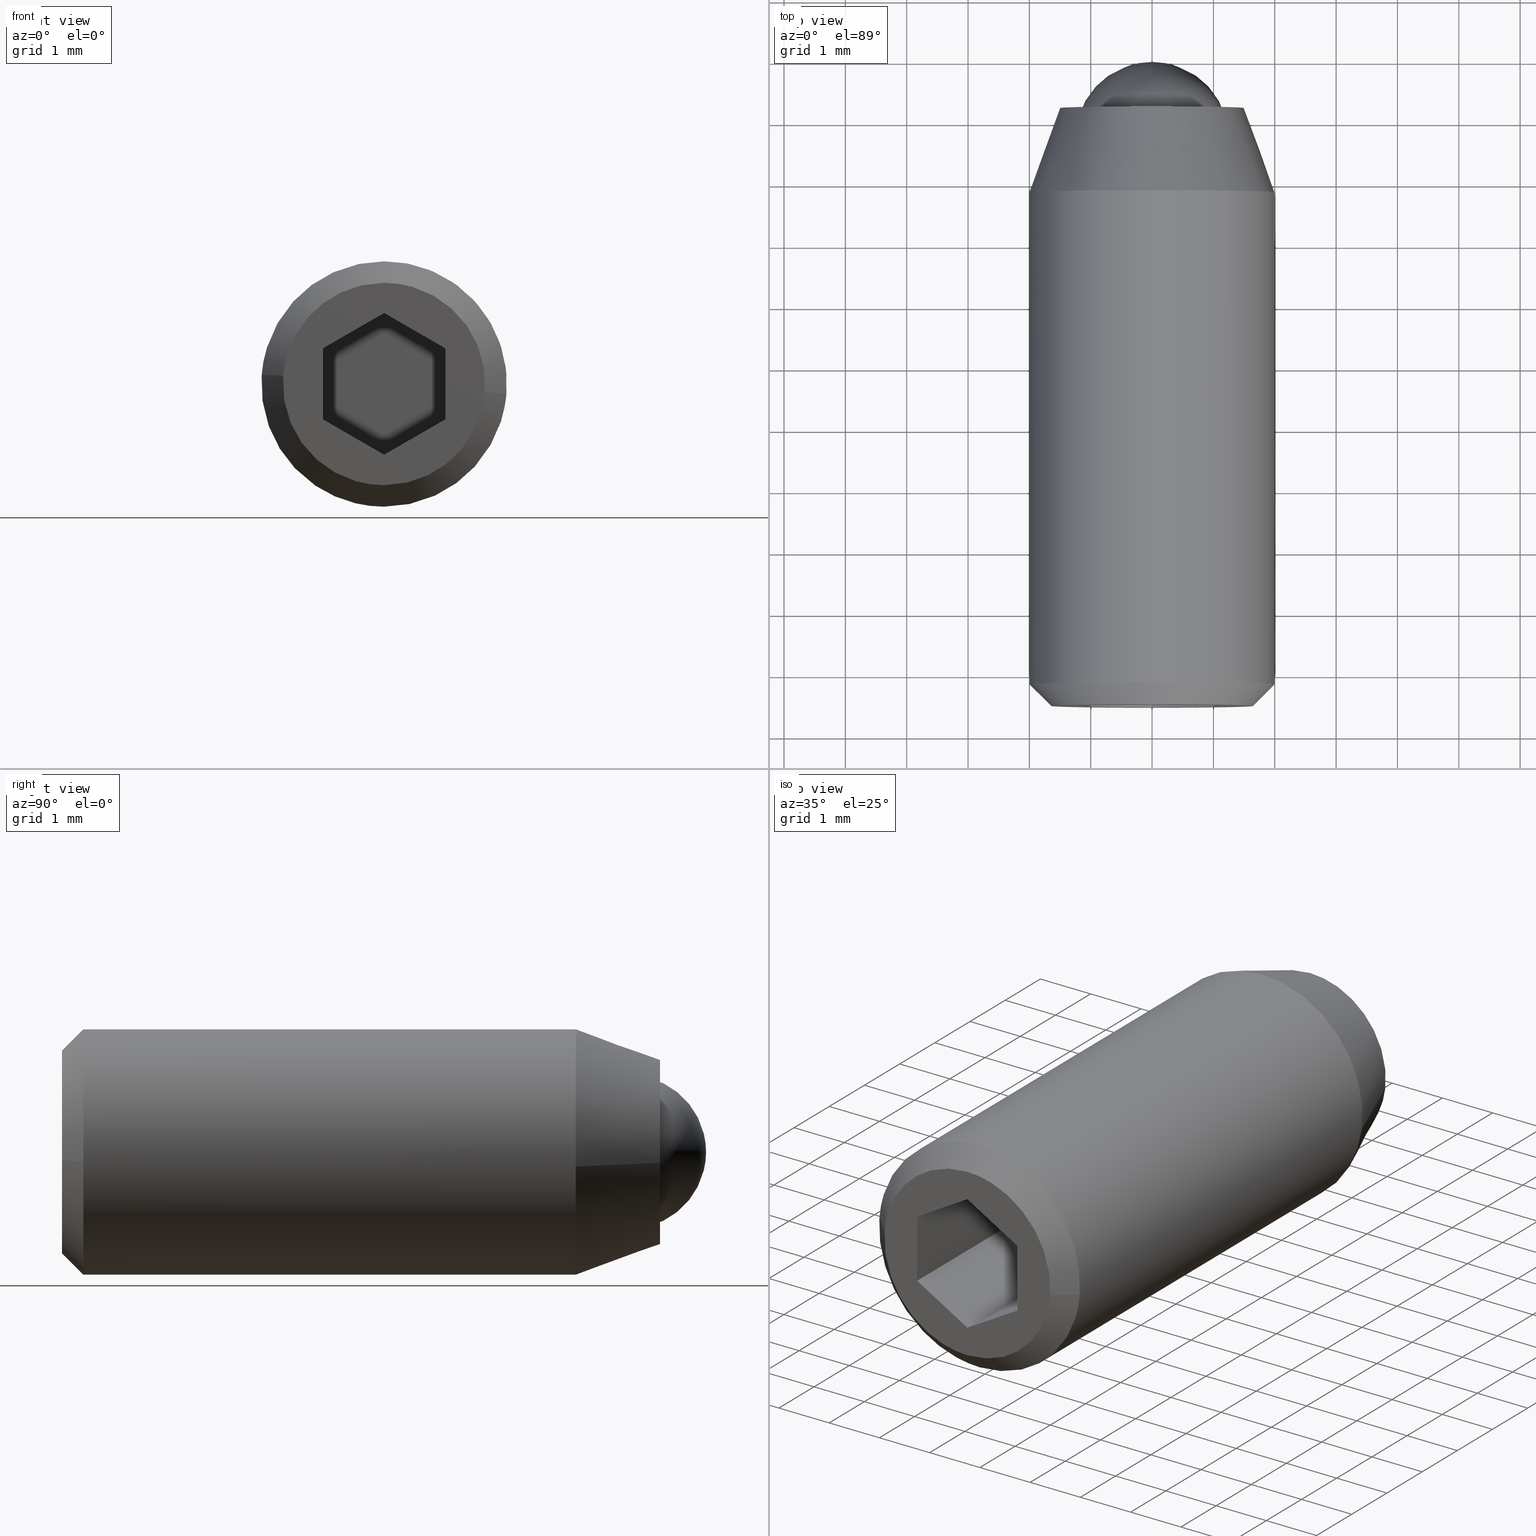
[diagram: canonical four-view strip — front | top / right | iso, engineering-drawing reading convention]
A machine part, canonical four-view strip (front | top / right | iso — engineering-drawing reading convention). The complete STEP part file that produces these views, byte-faithful:
ISO-10303-21;
HEADER;
/****************************************************************
 * Generated by software with PDE/Lib inside                    *
 * PDElib Version 4.4.1-0003, patched  Thursday August 19 11:58 *
 * International Technegroup Inc. (www.iti-oh.com)              *
 ****************************************************************/
FILE_DESCRIPTION((''),'2;1');
FILE_NAME('','2005-07-15T11:48:23',(''),(''),'','CADfix','');
FILE_SCHEMA(('AUTOMOTIVE_DESIGN'));
ENDSEC;
DATA;
#5=APPLICATION_CONTEXT('automotive design');
#6=APPLICATION_PROTOCOL_DEFINITION('Draft International Standard','automotive_design',1998,#5);
#7=PRODUCT_CONTEXT('None',#5,'mechanical');
#8=PRODUCT('body','','None',(#7));
#9=PRODUCT_RELATED_PRODUCT_CATEGORY('part','description',(#8));
#10=PRODUCT_DEFINITION_FORMATION('None','None',#8);
#11=PRODUCT_DEFINITION_CONTEXT('part definition',#5,'design');
#12=PRODUCT_DEFINITION('None','None',#10,#11);
#18=(NAMED_UNIT(*)PLANE_ANGLE_UNIT()SI_UNIT($,.RADIAN.));
#19=DIMENSIONAL_EXPONENTS(0.0,0.0,0.0,0.0,0.0,0.0,0.0);
#20=PLANE_ANGLE_MEASURE_WITH_UNIT(PLANE_ANGLE_MEASURE(0.017453292500000),#18);
#24=(CONVERSION_BASED_UNIT('DEGREE',#20)NAMED_UNIT(#19)PLANE_ANGLE_UNIT());
#28=(NAMED_UNIT(*)SI_UNIT($,.STERADIAN.)SOLID_ANGLE_UNIT());
#32=(LENGTH_UNIT()NAMED_UNIT(*)SI_UNIT(.MILLI.,.METRE.));
#34=UNCERTAINTY_MEASURE_WITH_UNIT(LENGTH_MEASURE(0.001000000000000),#32,'DISTANCE_ACCURACY_VALUE','');
#36=(GEOMETRIC_REPRESENTATION_CONTEXT(3)GLOBAL_UNCERTAINTY_ASSIGNED_CONTEXT((#34))GLOBAL_UNIT_ASSIGNED_CONTEXT((#24,#28,#32))REPRESENTATION_CONTEXT('None','None'));
#37=AXIS2_PLACEMENT_3D('',#38,#39,#40);
#38=CARTESIAN_POINT('',(0.0,0.0,0.0));
#39=DIRECTION('',(0.0,0.0,1.0));
#40=DIRECTION('',(1.0,0.0,0.0));
#41=ADVANCED_BREP_SHAPE_REPRESENTATION('',(#37,#945,#1156),#36);
#42=PRODUCT_DEFINITION_SHAPE('','',#12);
#43=SHAPE_DEFINITION_REPRESENTATION(#42,#41);
#44=CARTESIAN_POINT('',(-1.241261907954584,-0.700000000000029,0.147542793320948));
#45=CARTESIAN_POINT('',(-1.245484519310757,-0.700000000000028,0.112018410797472));
#46=CARTESIAN_POINT('',(-1.247668498027333,-0.700000000000028,0.076310674418571));
#47=CARTESIAN_POINT('',(-1.323979172445905,-0.700000000000028,-1.171357823608762));
#48=CARTESIAN_POINT('',(-0.076310674418571,-0.700000000000028,-1.247668498027333));
#49=CARTESIAN_POINT('',(1.171357823608762,-0.700000000000028,-1.323979172445905));
#50=CARTESIAN_POINT('',(1.247668498027333,-0.700000000000028,-0.076310674418571));
#51=CARTESIAN_POINT('',(-1.241261907954584,-2.801250000000000,0.147542793320948));
#52=CARTESIAN_POINT('',(-1.245484519310757,-2.801250000000001,0.112018410797472));
#53=CARTESIAN_POINT('',(-1.247668498027333,-2.801250000000000,0.076310674418571));
#54=CARTESIAN_POINT('',(-1.323979172445905,-2.801250000000000,-1.171357823608762));
#55=CARTESIAN_POINT('',(-0.076310674418571,-2.801250000000000,-1.247668498027333));
#56=CARTESIAN_POINT('',(1.171357823608762,-2.801250000000000,-1.323979172445905));
#57=CARTESIAN_POINT('',(1.247668498027333,-2.801250000000000,-0.076310674418571));
#65=(BOUNDED_SURFACE()B_SPLINE_SURFACE(2,1,((#44,#51),(#45,#52),(#46,#53),(#47,#54),(#48,#55),(#49,#56),(#50,#57)),.UNSPECIFIED.,.F.,.F.,.U.)B_SPLINE_SURFACE_WITH_KNOTS((3,2,2,3),(2,2),(3.078760800517997,3.141592653589793,4.712388980384690,6.283185307179586),(0.0,2.101249999999972),.UNSPECIFIED.)GEOMETRIC_REPRESENTATION_ITEM()RATIONAL_B_SPLINE_SURFACE(((0.977505800795127,0.977505800795127),(0.988284271247462,0.988284271247462),(1.0,1.0),(0.707106781186548,0.707106781186548),(1.0,1.0),(0.707106781186548,0.707106781186548),(1.0,1.0)))REPRESENTATION_ITEM('')SURFACE());
#66=CARTESIAN_POINT('',(-1.241261907953998,-2.750000000000000,0.147542793325864));
#67=VERTEX_POINT('',#66);
#68=CARTESIAN_POINT('',(0.0,-2.750000000000000,-1.250000000000000));
#69=VERTEX_POINT('',#68);
#70=CARTESIAN_POINT('',(-1.241261907953998,-2.750000000000000,0.147542793325864));
#71=CARTESIAN_POINT('',(-1.250000000000000,-2.750000000000000,0.074030149569856));
#72=CARTESIAN_POINT('',(-1.250000000000000,-2.750000000000000,0.0));
#73=CARTESIAN_POINT('',(-1.250000000000000,-2.750000000000000,-1.250000000000000));
#74=CARTESIAN_POINT('',(0.0,-2.750000000000000,-1.250000000000000));
#82=(BOUNDED_CURVE()B_SPLINE_CURVE(2,(#70,#71,#72,#73,#74),.UNSPECIFIED.,.F.,.U.)B_SPLINE_CURVE_WITH_KNOTS((3,2,3),(0.229562473514306,0.250000000000000,0.500000000000000),.UNSPECIFIED.)CURVE()GEOMETRIC_REPRESENTATION_ITEM()RATIONAL_B_SPLINE_CURVE((0.956026754185262,0.976055948332079,1.0,0.707106781186548,1.0))REPRESENTATION_ITEM(''));
#83=EDGE_CURVE('',#67,#69,#82,.T.);
#84=ORIENTED_EDGE('',*,*,#83,.T.);
#85=CARTESIAN_POINT('',(1.247668583123611,-2.750000000000010,-0.076309283081276));
#86=VERTEX_POINT('',#85);
#87=CARTESIAN_POINT('',(0.0,-2.750000000000000,-1.250000000000000));
#88=CARTESIAN_POINT('',(1.175883897368346,-2.750000000000000,-1.250000000000000));
#89=CARTESIAN_POINT('',(1.247668583123611,-2.750000000000010,-0.076309283081276));
#97=(BOUNDED_CURVE()B_SPLINE_CURVE(2,(#87,#88,#89),.UNSPECIFIED.,.F.,.U.)B_SPLINE_CURVE_WITH_KNOTS((3,3),(0.500000000000000,0.739333154657517),.UNSPECIFIED.)CURVE()GEOMETRIC_REPRESENTATION_ITEM()RATIONAL_B_SPLINE_CURVE((1.0,0.719603767854328,0.976072454056697))REPRESENTATION_ITEM(''));
#98=EDGE_CURVE('',#69,#86,#97,.T.);
#99=ORIENTED_EDGE('',*,*,#98,.T.);
#100=CARTESIAN_POINT('',(1.247668582072117,-0.750000000000028,-0.076309300273666));
#101=VERTEX_POINT('',#100);
#102=CARTESIAN_POINT('',(1.247668582072117,-0.750000000000028,-0.076309300273666));
#103=CARTESIAN_POINT('',(1.247668583123611,-2.750000000000010,-0.076309283081276));
#104=QUASI_UNIFORM_CURVE('',1,(#102,#103),.UNSPECIFIED.,.F.,.U.);
#105=EDGE_CURVE('',#101,#86,#104,.T.);
#106=ORIENTED_EDGE('',*,*,#105,.F.);
#107=CARTESIAN_POINT('',(0.0,-0.750000000000028,-1.250000000000000));
#108=VERTEX_POINT('',#107);
#109=CARTESIAN_POINT('',(0.0,-0.750000000000028,-1.250000000000000));
#110=CARTESIAN_POINT('',(1.175883881134845,-0.750000000000028,-1.250000000000000));
#111=CARTESIAN_POINT('',(1.247668582072117,-0.750000000000028,-0.076309300273666));
#119=(BOUNDED_CURVE()B_SPLINE_CURVE(2,(#109,#110,#111),.UNSPECIFIED.,.F.,.U.)B_SPLINE_CURVE_WITH_KNOTS((3,3),(0.500000000000000,0.739333152279888),.UNSPECIFIED.)CURVE()GEOMETRIC_REPRESENTATION_ITEM()RATIONAL_B_SPLINE_CURVE((1.0,0.719603770639894,0.976072448960977))REPRESENTATION_ITEM(''));
#120=EDGE_CURVE('',#108,#101,#119,.T.);
#121=ORIENTED_EDGE('',*,*,#120,.F.);
#122=CARTESIAN_POINT('',(-1.241261907953998,-0.750000000000028,0.147542793325864));
#123=VERTEX_POINT('',#122);
#124=CARTESIAN_POINT('',(-1.241261907953998,-0.750000000000028,0.147542793325864));
#125=CARTESIAN_POINT('',(-1.250000000000000,-0.750000000000028,0.074030149569856));
#126=CARTESIAN_POINT('',(-1.250000000000000,-0.750000000000028,0.0));
#127=CARTESIAN_POINT('',(-1.250000000000000,-0.750000000000028,-1.250000000000000));
#128=CARTESIAN_POINT('',(0.0,-0.750000000000028,-1.250000000000000));
#136=(BOUNDED_CURVE()B_SPLINE_CURVE(2,(#124,#125,#126,#127,#128),.UNSPECIFIED.,.F.,.U.)B_SPLINE_CURVE_WITH_KNOTS((3,2,3),(0.229562473514306,0.250000000000000,0.500000000000000),.UNSPECIFIED.)CURVE()GEOMETRIC_REPRESENTATION_ITEM()RATIONAL_B_SPLINE_CURVE((0.956026754185262,0.976055948332079,1.0,0.707106781186548,1.0))REPRESENTATION_ITEM(''));
#137=EDGE_CURVE('',#123,#108,#136,.T.);
#138=ORIENTED_EDGE('',*,*,#137,.F.);
#139=CARTESIAN_POINT('',(-1.241261907953998,-0.750000000000028,0.147542793325864));
#140=CARTESIAN_POINT('',(-1.241261907953998,-2.750000000000000,0.147542793325864));
#141=QUASI_UNIFORM_CURVE('',1,(#139,#140),.UNSPECIFIED.,.F.,.U.);
#142=EDGE_CURVE('',#123,#67,#141,.T.);
#143=ORIENTED_EDGE('',*,*,#142,.T.);
#144=EDGE_LOOP('',(#84,#99,#106,#121,#138,#143));
#145=FACE_OUTER_BOUND('',#144,.T.);
#146=ADVANCED_FACE('',(#145),#65,.F.);
#147=CARTESIAN_POINT('',(1.247668498027333,-0.700000000000028,-0.076310674418571));
#148=CARTESIAN_POINT('',(1.323979172445905,-0.700000000000028,1.171357823608762));
#149=CARTESIAN_POINT('',(0.076310674418571,-0.700000000000028,1.247668498027333));
#150=CARTESIAN_POINT('',(-1.101929363549376,-0.700000000000028,1.319732745915659));
#151=CARTESIAN_POINT('',(-1.241261907954584,-0.700000000000029,0.147542793320948));
#152=CARTESIAN_POINT('',(1.247668498027333,-2.801250000000000,-0.076310674418571));
#153=CARTESIAN_POINT('',(1.323979172445905,-2.801250000000000,1.171357823608762));
#154=CARTESIAN_POINT('',(0.076310674418571,-2.801250000000000,1.247668498027333));
#155=CARTESIAN_POINT('',(-1.101929363549376,-2.801250000000001,1.319732745915659));
#156=CARTESIAN_POINT('',(-1.241261907954584,-2.801250000000000,0.147542793320948));
#164=(BOUNDED_SURFACE()B_SPLINE_SURFACE(2,1,((#147,#152),(#148,#153),(#149,#154),(#150,#155),(#151,#156)),.UNSPECIFIED.,.F.,.F.,.U.)B_SPLINE_SURFACE_WITH_KNOTS((3,2,3),(2,2),(0.0,1.570796326794897,3.078760800517997),(0.0,2.101249999999972),.UNSPECIFIED.)GEOMETRIC_REPRESENTATION_ITEM()RATIONAL_B_SPLINE_SURFACE(((1.0,1.0),(0.707106781186548,0.707106781186548),(1.0,1.0),(0.718822509939086,0.718822509939086),(0.977505800795127,0.977505800795127)))REPRESENTATION_ITEM('')SURFACE());
#165=CARTESIAN_POINT('',(0.0,-2.750000000000000,1.250000000000000));
#166=VERTEX_POINT('',#165);
#167=CARTESIAN_POINT('',(0.0,-2.750000000000000,1.250000000000000));
#168=CARTESIAN_POINT('',(-1.110218157430353,-2.750000000000000,1.250000000000000));
#169=CARTESIAN_POINT('',(-1.241261907953998,-2.750000000000000,0.147542793325864));
#177=(BOUNDED_CURVE()B_SPLINE_CURVE(2,(#167,#168,#169),.UNSPECIFIED.,.F.,.U.)B_SPLINE_CURVE_WITH_KNOTS((3,3),(0.0,0.229562473514305),.UNSPECIFIED.)CURVE()GEOMETRIC_REPRESENTATION_ITEM()RATIONAL_B_SPLINE_CURVE((1.0,0.731050832854469,0.956026754185262))REPRESENTATION_ITEM(''));
#178=EDGE_CURVE('',#166,#67,#177,.T.);
#179=ORIENTED_EDGE('',*,*,#178,.T.);
#180=ORIENTED_EDGE('',*,*,#142,.F.);
#181=CARTESIAN_POINT('',(0.0,-0.750000000000028,1.250000000000000));
#182=VERTEX_POINT('',#181);
#183=CARTESIAN_POINT('',(0.0,-0.750000000000028,1.250000000000000));
#184=CARTESIAN_POINT('',(-1.110218157430353,-0.750000000000028,1.250000000000000));
#185=CARTESIAN_POINT('',(-1.241261907953998,-0.750000000000028,0.147542793325864));
#193=(BOUNDED_CURVE()B_SPLINE_CURVE(2,(#183,#184,#185),.UNSPECIFIED.,.F.,.U.)B_SPLINE_CURVE_WITH_KNOTS((3,3),(0.0,0.229562473514305),.UNSPECIFIED.)CURVE()GEOMETRIC_REPRESENTATION_ITEM()RATIONAL_B_SPLINE_CURVE((1.0,0.731050832854469,0.956026754185262))REPRESENTATION_ITEM(''));
#194=EDGE_CURVE('',#182,#123,#193,.T.);
#195=ORIENTED_EDGE('',*,*,#194,.F.);
#196=CARTESIAN_POINT('',(1.247668582072117,-0.750000000000028,-0.076309300273666));
#197=CARTESIAN_POINT('',(1.250000000000000,-0.750000000000028,-0.038190265124357));
#198=CARTESIAN_POINT('',(1.250000000000000,-0.750000000000028,0.0));
#199=CARTESIAN_POINT('',(1.250000000000000,-0.750000000000028,1.250000000000000));
#200=CARTESIAN_POINT('',(0.0,-0.750000000000028,1.250000000000000));
#208=(BOUNDED_CURVE()B_SPLINE_CURVE(2,(#196,#197,#198,#199,#200),.UNSPECIFIED.,.F.,.U.)B_SPLINE_CURVE_WITH_KNOTS((3,2,3),(0.739333152279888,0.750000000000000,1.0),.UNSPECIFIED.)CURVE()GEOMETRIC_REPRESENTATION_ITEM()RATIONAL_B_SPLINE_CURVE((0.976072448960977,0.987503010546654,1.0,0.707106781186548,1.0))REPRESENTATION_ITEM(''));
#209=EDGE_CURVE('',#101,#182,#208,.T.);
#210=ORIENTED_EDGE('',*,*,#209,.F.);
#211=ORIENTED_EDGE('',*,*,#105,.T.);
#212=CARTESIAN_POINT('',(1.247668583123611,-2.750000000000010,-0.076309283081276));
#213=CARTESIAN_POINT('',(1.250000000000000,-2.750000000000000,-0.038190256504060));
#214=CARTESIAN_POINT('',(1.250000000000000,-2.750000000000000,0.0));
#215=CARTESIAN_POINT('',(1.250000000000000,-2.750000000000000,1.250000000000000));
#216=CARTESIAN_POINT('',(0.0,-2.750000000000000,1.250000000000000));
#224=(BOUNDED_CURVE()B_SPLINE_CURVE(2,(#212,#213,#214,#215,#216),.UNSPECIFIED.,.F.,.U.)B_SPLINE_CURVE_WITH_KNOTS((3,2,3),(0.739333154657517,0.750000000000000,1.0),.UNSPECIFIED.)CURVE()GEOMETRIC_REPRESENTATION_ITEM()RATIONAL_B_SPLINE_CURVE((0.976072454056697,0.987503013332219,1.0,0.707106781186548,1.0))REPRESENTATION_ITEM(''));
#225=EDGE_CURVE('',#86,#166,#224,.T.);
#226=ORIENTED_EDGE('',*,*,#225,.T.);
#227=EDGE_LOOP('',(#179,#180,#195,#210,#211,#226));
#228=FACE_OUTER_BOUND('',#227,.T.);
#229=ADVANCED_FACE('',(#228),#164,.F.);
#230=CARTESIAN_POINT('',(-0.468647227970026,-1.923082475000000,-1.944317303249655));
#231=CARTESIAN_POINT('',(-0.297656594332521,-1.923082475000000,-1.985531916897912));
#232=CARTESIAN_POINT('',(-0.122097079069714,-1.923082475000000,-1.996269596843734));
#233=CARTESIAN_POINT('',(1.874172517774020,-1.923082475000000,-2.118366675913449));
#234=CARTESIAN_POINT('',(1.996269596843733,-1.923082475000000,-0.122097079069714));
#235=CARTESIAN_POINT('',(2.118366675913447,-1.923082475000000,1.874172517774019));
#236=CARTESIAN_POINT('',(0.122097079069714,-1.923082475000000,1.996269596843733));
#237=CARTESIAN_POINT('',(-1.874172517774020,-1.923082475000000,2.118366675913447));
#238=CARTESIAN_POINT('',(-1.996269596843733,-1.923082475000000,0.122097079069714));
#239=CARTESIAN_POINT('',(-0.468647227970026,-10.355672938124998,-1.944317303249655));
#240=CARTESIAN_POINT('',(-0.297656594332521,-10.355672938124998,-1.985531916897912));
#241=CARTESIAN_POINT('',(-0.122097079069714,-10.355672938125000,-1.996269596843734));
#242=CARTESIAN_POINT('',(1.874172517774020,-10.355672938124998,-2.118366675913449));
#243=CARTESIAN_POINT('',(1.996269596843733,-10.355672938125000,-0.122097079069714));
#244=CARTESIAN_POINT('',(2.118366675913447,-10.355672938124998,1.874172517774019));
#245=CARTESIAN_POINT('',(0.122097079069714,-10.355672938125000,1.996269596843733));
#246=CARTESIAN_POINT('',(-1.874172517774020,-10.355672938124998,2.118366675913447));
#247=CARTESIAN_POINT('',(-1.996269596843733,-10.355672938125000,0.122097079069714));
#255=(BOUNDED_SURFACE()B_SPLINE_SURFACE(2,1,((#230,#239),(#231,#240),(#232,#241),(#233,#242),(#234,#243),(#235,#244),(#236,#245),(#237,#246),(#238,#247)),.UNSPECIFIED.,.F.,.F.,.U.)B_SPLINE_SURFACE_WITH_KNOTS((3,2,2,2,3),(2,2),(0.0,0.397645019878171,3.711353518862931,7.025062017847690,10.338770516832451),(0.0,8.432590463124999),.UNSPECIFIED.)GEOMETRIC_REPRESENTATION_ITEM()RATIONAL_B_SPLINE_SURFACE(((0.938140952186599,0.938140952186599),(0.964852813742386,0.964852813742386),(1.0,1.0),(0.707106781186548,0.707106781186548),(1.0,1.0),(0.707106781186548,0.707106781186548),(1.0,1.0),(0.707106781186548,0.707106781186548),(1.0,1.0)))REPRESENTATION_ITEM('')SURFACE());
#256=CARTESIAN_POINT('',(-0.468647227972025,-10.150000000000000,-1.944317303249173));
#257=VERTEX_POINT('',#256);
#258=CARTESIAN_POINT('',(0.0,-10.150000000000000,-2.0));
#259=VERTEX_POINT('',#258);
#260=CARTESIAN_POINT('',(-0.468647227972025,-10.149999999999999,-1.944317303249173));
#261=CARTESIAN_POINT('',(-0.237631606152997,-10.149999999999999,-2.000000000000001));
#262=CARTESIAN_POINT('',(0.0,-10.150000000000000,-2.0));
#270=(BOUNDED_CURVE()B_SPLINE_CURVE(2,(#260,#261,#262),.UNSPECIFIED.,.F.,.U.)B_SPLINE_CURVE_WITH_KNOTS((3,3),(0.959962709885913,1.0),.UNSPECIFIED.)CURVE()GEOMETRIC_REPRESENTATION_ITEM()RATIONAL_B_SPLINE_CURVE((0.921210900018809,0.953093396903668,1.0))REPRESENTATION_ITEM(''));
#271=EDGE_CURVE('',#257,#259,#270,.T.);
#272=ORIENTED_EDGE('',*,*,#271,.F.);
#273=CARTESIAN_POINT('',(-0.468647227972025,-2.123739000000001,-1.944317303249173));
#274=VERTEX_POINT('',#273);
#275=CARTESIAN_POINT('',(-0.468647227972025,-2.123739000000001,-1.944317303249173));
#276=CARTESIAN_POINT('',(-0.468647227972025,-10.150000000000000,-1.944317303249173));
#277=QUASI_UNIFORM_CURVE('',1,(#275,#276),.UNSPECIFIED.,.F.,.U.);
#278=EDGE_CURVE('',#274,#257,#277,.T.);
#279=ORIENTED_EDGE('',*,*,#278,.F.);
#280=CARTESIAN_POINT('',(0.0,-2.123739000000000,-2.0));
#281=VERTEX_POINT('',#280);
#282=CARTESIAN_POINT('',(-0.468647227972025,-2.123739000000001,-1.944317303249173));
#283=CARTESIAN_POINT('',(-0.237631606152998,-2.123739000000000,-2.000000000000001));
#284=CARTESIAN_POINT('',(0.0,-2.123739000000000,-2.0));
#292=(BOUNDED_CURVE()B_SPLINE_CURVE(2,(#282,#283,#284),.UNSPECIFIED.,.F.,.U.)B_SPLINE_CURVE_WITH_KNOTS((3,3),(0.959962709885912,1.0),.UNSPECIFIED.)CURVE()GEOMETRIC_REPRESENTATION_ITEM()RATIONAL_B_SPLINE_CURVE((0.921210900018809,0.953093396903668,1.0))REPRESENTATION_ITEM(''));
#293=EDGE_CURVE('',#274,#281,#292,.T.);
#294=ORIENTED_EDGE('',*,*,#293,.T.);
#295=CARTESIAN_POINT('',(1.986018696629059,-2.123737481023893,-0.236066781207262));
#296=VERTEX_POINT('',#295);
#297=CARTESIAN_POINT('',(0.0,-2.123739000000000,-2.0));
#298=CARTESIAN_POINT('',(1.776350239143317,-2.123738240511947,-1.999999967371865));
#299=CARTESIAN_POINT('',(1.986018696629059,-2.123737481023893,-0.236066781207262));
#307=(BOUNDED_CURVE()B_SPLINE_CURVE(2,(#297,#298,#299),.UNSPECIFIED.,.F.,.U.)B_SPLINE_CURVE_WITH_KNOTS((3,3),(0.0,0.229562611614494),.UNSPECIFIED.)CURVE()GEOMETRIC_REPRESENTATION_ITEM()RATIONAL_B_SPLINE_CURVE((1.0,0.731050671060033,0.956027024867462))REPRESENTATION_ITEM(''));
#308=EDGE_CURVE('',#281,#296,#307,.T.);
#309=ORIENTED_EDGE('',*,*,#308,.T.);
#310=CARTESIAN_POINT('',(0.0,-2.123739000000000,2.0));
#311=VERTEX_POINT('',#310);
#312=CARTESIAN_POINT('',(1.986018696629059,-2.123737481023893,-0.236066781207262));
#313=CARTESIAN_POINT('',(1.999999465441007,-2.123737520973749,-0.118447355760610));
#314=CARTESIAN_POINT('',(1.999999481697853,-2.123737565953450,0.000000061607637));
#315=CARTESIAN_POINT('',(1.999999756196814,-2.123738325441503,2.000000028979503));
#316=CARTESIAN_POINT('',(0.0,-2.123739000000000,2.0));
#324=(BOUNDED_CURVE()B_SPLINE_CURVE(2,(#312,#313,#314,#315,#316),.UNSPECIFIED.,.F.,.U.)B_SPLINE_CURVE_WITH_KNOTS((3,2,3),(0.229562611614494,0.250000000000000,0.500000000000000),.UNSPECIFIED.)CURVE()GEOMETRIC_REPRESENTATION_ITEM()RATIONAL_B_SPLINE_CURVE((0.956027024867462,0.976056110126514,1.0,0.707106781186548,1.0))REPRESENTATION_ITEM(''));
#325=EDGE_CURVE('',#296,#311,#324,.T.);
#326=ORIENTED_EDGE('',*,*,#325,.T.);
#327=CARTESIAN_POINT('',(-1.996269596843757,-2.123739000001591,0.122097079074065));
#328=VERTEX_POINT('',#327);
#329=CARTESIAN_POINT('',(0.0,-2.123739000000000,2.0));
#330=CARTESIAN_POINT('',(-1.881412133795027,-2.123739000000000,2.0));
#331=CARTESIAN_POINT('',(-1.996269596843757,-2.123739000001591,0.122097079074065));
#339=(BOUNDED_CURVE()B_SPLINE_CURVE(2,(#329,#330,#331),.UNSPECIFIED.,.F.,.U.)B_SPLINE_CURVE_WITH_KNOTS((3,3),(0.500000000000000,0.739332962240471),.UNSPECIFIED.)CURVE()GEOMETRIC_REPRESENTATION_ITEM()RATIONAL_B_SPLINE_CURVE((1.0,0.719603993284921,0.976072041669992))REPRESENTATION_ITEM(''));
#340=EDGE_CURVE('',#311,#328,#339,.T.);
#341=ORIENTED_EDGE('',*,*,#340,.T.);
#342=CARTESIAN_POINT('',(-1.996269606971594,-10.150000000000000,0.122096913480431));
#343=VERTEX_POINT('',#342);
#344=CARTESIAN_POINT('',(-1.996269596843757,-2.123739000001591,0.122097079074065));
#345=CARTESIAN_POINT('',(-1.996269606971594,-10.150000000000000,0.122096913480431));
#346=QUASI_UNIFORM_CURVE('',1,(#344,#345),.UNSPECIFIED.,.F.,.U.);
#347=EDGE_CURVE('',#328,#343,#346,.T.);
#348=ORIENTED_EDGE('',*,*,#347,.T.);
#349=CARTESIAN_POINT('',(-1.993834667467310,-10.149999999997350,0.156918191476072));
#350=VERTEX_POINT('',#349);
#351=CARTESIAN_POINT('',(-1.993834667467309,-10.149999999997348,0.156918191476072));
#352=CARTESIAN_POINT('',(-1.995204084793074,-10.149999999999999,0.139518094536377));
#353=CARTESIAN_POINT('',(-1.996269606971594,-10.149999999999997,0.122096913480431));
#361=(BOUNDED_CURVE()B_SPLINE_CURVE(2,(#351,#352,#353),.UNSPECIFIED.,.F.,.U.)B_SPLINE_CURVE_WITH_KNOTS((3,3),(0.736331300629298,0.739332990867260),.UNSPECIFIED.)CURVE()GEOMETRIC_REPRESENTATION_ITEM()RATIONAL_B_SPLINE_CURVE((0.969723356164576,0.972855505431034,0.976072103022660))REPRESENTATION_ITEM(''));
#362=EDGE_CURVE('',#350,#343,#361,.T.);
#363=ORIENTED_EDGE('',*,*,#362,.F.);
#364=CARTESIAN_POINT('',(0.0,-10.150000000000000,2.0));
#365=VERTEX_POINT('',#364);
#366=CARTESIAN_POINT('',(0.0,-10.150000000000000,2.0));
#367=CARTESIAN_POINT('',(-1.848780983278884,-10.149999999999999,2.000000000000000));
#368=CARTESIAN_POINT('',(-1.993834667467310,-10.149999999997348,0.156918191476072));
#376=(BOUNDED_CURVE()B_SPLINE_CURVE(2,(#366,#367,#368),.UNSPECIFIED.,.F.,.U.)B_SPLINE_CURVE_WITH_KNOTS((3,3),(0.500000000000000,0.736331300629298),.UNSPECIFIED.)CURVE()GEOMETRIC_REPRESENTATION_ITEM()RATIONAL_B_SPLINE_CURVE((1.0,0.723120658609261,0.969723356164576))REPRESENTATION_ITEM(''));
#377=EDGE_CURVE('',#365,#350,#376,.T.);
#378=ORIENTED_EDGE('',*,*,#377,.F.);
#379=CARTESIAN_POINT('',(1.993834667467310,-10.149999999997350,-0.156918191476073));
#380=VERTEX_POINT('',#379);
#381=CARTESIAN_POINT('',(1.993834667467310,-10.149999999997348,-0.156918191476073));
#382=CARTESIAN_POINT('',(2.000000000000000,-10.150000000000000,-0.078580214035607));
#383=CARTESIAN_POINT('',(2.0,-10.150000000000000,-4.439198E-016));
#384=CARTESIAN_POINT('',(2.000000000000000,-10.149999999999999,2.000000000000000));
#385=CARTESIAN_POINT('',(0.0,-10.150000000000000,2.0));
#393=(BOUNDED_CURVE()B_SPLINE_CURVE(2,(#381,#382,#383,#384,#385),.UNSPECIFIED.,.F.,.U.)B_SPLINE_CURVE_WITH_KNOTS((3,2,3),(0.236331300629298,0.250000000000000,0.500000000000000),.UNSPECIFIED.)CURVE()GEOMETRIC_REPRESENTATION_ITEM()RATIONAL_B_SPLINE_CURVE((0.969723356164576,0.983986122577287,1.0,0.707106781186548,1.0))REPRESENTATION_ITEM(''));
#394=EDGE_CURVE('',#380,#365,#393,.T.);
#395=ORIENTED_EDGE('',*,*,#394,.F.);
#396=CARTESIAN_POINT('',(0.0,-10.150000000000000,-2.0));
#397=CARTESIAN_POINT('',(1.848780983278886,-10.149999999999999,-2.0));
#398=CARTESIAN_POINT('',(1.993834667467310,-10.149999999997348,-0.156918191476073));
#406=(BOUNDED_CURVE()B_SPLINE_CURVE(2,(#396,#397,#398),.UNSPECIFIED.,.F.,.U.)B_SPLINE_CURVE_WITH_KNOTS((3,3),(0.0,0.236331300629298),.UNSPECIFIED.)CURVE()GEOMETRIC_REPRESENTATION_ITEM()RATIONAL_B_SPLINE_CURVE((1.0,0.723120658609261,0.969723356164576))REPRESENTATION_ITEM(''));
#407=EDGE_CURVE('',#259,#380,#406,.T.);
#408=ORIENTED_EDGE('',*,*,#407,.F.);
#409=EDGE_LOOP('',(#272,#279,#294,#309,#326,#341,#348,#363,#378,#395,#408));
#410=FACE_OUTER_BOUND('',#409,.T.);
#411=ADVANCED_FACE('',(#410),#255,.T.);
#412=CARTESIAN_POINT('',(-1.996269596843733,-1.923082475000000,0.122097079069714));
#413=CARTESIAN_POINT('',(-2.098627273861051,-1.923082475000000,-1.551436147032736));
#414=CARTESIAN_POINT('',(-0.468647227970026,-1.923082475000000,-1.944317303249655));
#415=CARTESIAN_POINT('',(-1.996269596843733,-10.355672938125000,0.122097079069714));
#416=CARTESIAN_POINT('',(-2.098627273861051,-10.355672938124998,-1.551436147032736));
#417=CARTESIAN_POINT('',(-0.468647227970026,-10.355672938124998,-1.944317303249655));
#425=(BOUNDED_SURFACE()B_SPLINE_SURFACE(2,1,((#412,#415),(#413,#416),(#414,#417)),.UNSPECIFIED.,.F.,.F.,.U.)B_SPLINE_SURFACE_WITH_KNOTS((3,3),(2,2),(0.0,2.908876664709617),(0.0,8.432590463124999),.UNSPECIFIED.)GEOMETRIC_REPRESENTATION_ITEM()RATIONAL_B_SPLINE_SURFACE(((1.0,1.0),(0.742253967444162,0.742253967444162),(0.938140952186599,0.938140952186599)))REPRESENTATION_ITEM('')SURFACE());
#426=CARTESIAN_POINT('',(-1.996269606971594,-10.149999999999997,0.122096913480431));
#427=CARTESIAN_POINT('',(-2.000000000000000,-10.149999999999997,0.061105360543600));
#428=CARTESIAN_POINT('',(-2.0,-10.150000000000000,-4.439198E-016));
#429=CARTESIAN_POINT('',(-2.0,-10.149999999999999,-1.575208706384800));
#430=CARTESIAN_POINT('',(-0.468647227972025,-10.149999999999999,-1.944317303249174));
#438=(BOUNDED_CURVE()B_SPLINE_CURVE(2,(#426,#427,#428,#429,#430),.UNSPECIFIED.,.F.,.U.)B_SPLINE_CURVE_WITH_KNOTS((3,2,3),(0.739332990867260,0.750000000000000,0.959962709885912),.UNSPECIFIED.)CURVE()GEOMETRIC_REPRESENTATION_ITEM()RATIONAL_B_SPLINE_CURVE((0.976072103022659,0.987502821439997,1.0,0.754013384282880,0.921210900018809))REPRESENTATION_ITEM(''));
#439=EDGE_CURVE('',#343,#257,#438,.T.);
#440=ORIENTED_EDGE('',*,*,#439,.F.);
#441=ORIENTED_EDGE('',*,*,#347,.F.);
#442=CARTESIAN_POINT('',(-1.996269596843758,-2.123739000001590,0.122097079074065));
#443=CARTESIAN_POINT('',(-2.000000000000000,-2.123738999999999,0.061105526605868));
#444=CARTESIAN_POINT('',(-2.0,-2.123739000000000,-4.439198E-016));
#445=CARTESIAN_POINT('',(-2.000000000000000,-2.123739000000001,-1.575208706384798));
#446=CARTESIAN_POINT('',(-0.468647227972025,-2.123739000000001,-1.944317303249173));
#454=(BOUNDED_CURVE()B_SPLINE_CURVE(2,(#442,#443,#444,#445,#446),.UNSPECIFIED.,.F.,.U.)B_SPLINE_CURVE_WITH_KNOTS((3,2,3),(0.739332962240470,0.750000000000000,0.959962709885912),.UNSPECIFIED.)CURVE()GEOMETRIC_REPRESENTATION_ITEM()RATIONAL_B_SPLINE_CURVE((0.976072041669991,0.987502787901627,1.0,0.754013384282880,0.921210900018808))REPRESENTATION_ITEM(''));
#455=EDGE_CURVE('',#328,#274,#454,.T.);
#456=ORIENTED_EDGE('',*,*,#455,.T.);
#457=ORIENTED_EDGE('',*,*,#278,.T.);
#458=EDGE_LOOP('',(#440,#441,#456,#457));
#459=FACE_OUTER_BOUND('',#458,.T.);
#460=ADVANCED_FACE('',(#459),#425,.T.);
#461=CARTESIAN_POINT('',(1.477101670465954,-0.715656525000000,-0.175575924051929));
#462=CARTESIAN_POINT('',(1.482126577979801,-0.715656525000000,-0.133301908848992));
#463=CARTESIAN_POINT('',(1.484725512652527,-0.715656525000000,-0.090809702558100));
#464=CARTESIAN_POINT('',(1.575535215210627,-0.715656525000000,1.393915810094426));
#465=CARTESIAN_POINT('',(0.090809702558100,-0.715656525000000,1.484725512652526));
#466=CARTESIAN_POINT('',(-1.393915810094427,-0.715656525000000,1.575535215210626));
#467=CARTESIAN_POINT('',(-1.484725512652527,-0.715656525000000,0.090809702558099));
#468=CARTESIAN_POINT('',(1.998741987283866,-2.158941061875002,-0.237580782945057));
#469=CARTESIAN_POINT('',(2.005541447220145,-2.158941061875001,-0.180377645986630));
#470=CARTESIAN_POINT('',(2.009058198948512,-2.158941061875001,-0.122879263482505));
#471=CARTESIAN_POINT('',(2.131937462431017,-2.158941061875001,1.886178935466008));
#472=CARTESIAN_POINT('',(0.122879263482504,-2.158941061875001,2.009058198948512));
#473=CARTESIAN_POINT('',(-1.886178935466008,-2.158941061875001,2.131937462431016));
#474=CARTESIAN_POINT('',(-2.009058198948512,-2.158941061875001,0.122879263482504));
#482=(BOUNDED_SURFACE()B_SPLINE_SURFACE(2,1,((#461,#468),(#462,#469),(#463,#470),(#464,#471),(#465,#472),(#466,#473),(#467,#474)),.UNSPECIFIED.,.F.,.F.,.U.)B_SPLINE_SURFACE_WITH_KNOTS((3,2,2,3),(2,2),(0.0,0.133397477762255,3.468334421818635,6.803271365875014),(0.0,1.0),.UNSPECIFIED.)GEOMETRIC_REPRESENTATION_ITEM()RATIONAL_B_SPLINE_SURFACE(((0.977505800795127,0.977505800795127),(0.988284271247462,0.988284271247462),(1.0,1.0),(0.707106781186548,0.707106781186548),(1.0,1.0),(0.707106781186548,0.707106781186548),(1.0,1.0)))REPRESENTATION_ITEM('')SURFACE());
#483=ORIENTED_EDGE('',*,*,#325,.F.);
#484=CARTESIAN_POINT('',(1.489514289545021,-0.750000000001784,-0.177051351994671));
#485=VERTEX_POINT('',#484);
#486=CARTESIAN_POINT('',(1.489514289545021,-0.750000000001784,-0.177051351994671));
#487=CARTESIAN_POINT('',(1.986018696629059,-2.123737481023893,-0.236066781207262));
#488=QUASI_UNIFORM_CURVE('',1,(#486,#487),.UNSPECIFIED.,.F.,.U.);
#489=EDGE_CURVE('',#485,#296,#488,.T.);
#490=ORIENTED_EDGE('',*,*,#489,.F.);
#491=CARTESIAN_POINT('',(0.0,-0.750000000000000,1.500000000000000));
#492=VERTEX_POINT('',#491);
#493=CARTESIAN_POINT('',(1.489514289545020,-0.750000000001784,-0.177051351994671));
#494=CARTESIAN_POINT('',(1.500000000000000,-0.750000000000000,-0.088836179487422));
#495=CARTESIAN_POINT('',(1.500000000000000,-0.750000000000000,-4.439198E-016));
#496=CARTESIAN_POINT('',(1.500000000000000,-0.750000000000000,1.500000000000000));
#497=CARTESIAN_POINT('',(0.0,-0.750000000000000,1.500000000000000));
#505=(BOUNDED_CURVE()B_SPLINE_CURVE(2,(#493,#494,#495,#496,#497),.UNSPECIFIED.,.F.,.U.)B_SPLINE_CURVE_WITH_KNOTS((3,2,3),(0.229562473513498,0.250000000000000,0.500000000000000),.UNSPECIFIED.)CURVE()GEOMETRIC_REPRESENTATION_ITEM()RATIONAL_B_SPLINE_CURVE((0.956026754183680,0.976055948331134,1.0,0.707106781186548,1.0))REPRESENTATION_ITEM(''));
#506=EDGE_CURVE('',#485,#492,#505,.T.);
#507=ORIENTED_EDGE('',*,*,#506,.T.);
#508=CARTESIAN_POINT('',(-1.497202197632868,-0.750000000002237,0.091572809314521));
#509=VERTEX_POINT('',#508);
#510=CARTESIAN_POINT('',(0.0,-0.750000000000000,1.500000000000000));
#511=CARTESIAN_POINT('',(-1.411059100335538,-0.750000000000000,1.500000000000000));
#512=CARTESIAN_POINT('',(-1.497202197632868,-0.750000000002237,0.091572809314521));
#520=(BOUNDED_CURVE()B_SPLINE_CURVE(2,(#510,#511,#512),.UNSPECIFIED.,.F.,.U.)B_SPLINE_CURVE_WITH_KNOTS((3,3),(0.500000000000000,0.739332962239160),.UNSPECIFIED.)CURVE()GEOMETRIC_REPRESENTATION_ITEM()RATIONAL_B_SPLINE_CURVE((1.0,0.719603993286455,0.976072041667184))REPRESENTATION_ITEM(''));
#521=EDGE_CURVE('',#492,#509,#520,.T.);
#522=ORIENTED_EDGE('',*,*,#521,.T.);
#523=CARTESIAN_POINT('',(-1.497202197632868,-0.750000000002237,0.091572809314521));
#524=CARTESIAN_POINT('',(-1.996269596843757,-2.123739000001591,0.122097079074065));
#525=QUASI_UNIFORM_CURVE('',1,(#523,#524),.UNSPECIFIED.,.F.,.U.);
#526=EDGE_CURVE('',#509,#328,#525,.T.);
#527=ORIENTED_EDGE('',*,*,#526,.T.);
#528=ORIENTED_EDGE('',*,*,#340,.F.);
#529=EDGE_LOOP('',(#483,#490,#507,#522,#527,#528));
#530=FACE_OUTER_BOUND('',#529,.T.);
#531=ADVANCED_FACE('',(#530),#482,.T.);
#532=CARTESIAN_POINT('',(-1.484725512652527,-0.715656525000000,0.090809702558099));
#533=CARTESIAN_POINT('',(-1.575535215210627,-0.715656525000000,-1.393915810094427));
#534=CARTESIAN_POINT('',(-0.090809702558100,-0.715656525000000,-1.484725512652527));
#535=CARTESIAN_POINT('',(1.311295942623758,-0.715656525000000,-1.570481967639636));
#536=CARTESIAN_POINT('',(1.477101670465954,-0.715656525000000,-0.175575924051929));
#537=CARTESIAN_POINT('',(-2.009058198948512,-2.158941061875001,0.122879263482504));
#538=CARTESIAN_POINT('',(-2.131937462431017,-2.158941061875001,-1.886178935466008));
#539=CARTESIAN_POINT('',(-0.122879263482504,-2.158941061875001,-2.009058198948513));
#540=CARTESIAN_POINT('',(1.774381757655382,-2.158941061875001,-2.125099654110690));
#541=CARTESIAN_POINT('',(1.998741987283866,-2.158941061875002,-0.237580782945057));
#549=(BOUNDED_SURFACE()B_SPLINE_SURFACE(2,1,((#532,#537),(#533,#538),(#534,#539),(#535,#540),(#536,#541)),.UNSPECIFIED.,.F.,.F.,.U.)B_SPLINE_SURFACE_WITH_KNOTS((3,2,3),(2,2),(0.0,3.334936944056379,6.536476410350503),(0.0,1.0),.UNSPECIFIED.)GEOMETRIC_REPRESENTATION_ITEM()RATIONAL_B_SPLINE_SURFACE(((1.0,1.0),(0.707106781186548,0.707106781186548),(1.0,1.0),(0.718822509939086,0.718822509939086),(0.977505800795127,0.977505800795127)))REPRESENTATION_ITEM('')SURFACE());
#550=ORIENTED_EDGE('',*,*,#308,.F.);
#551=ORIENTED_EDGE('',*,*,#293,.F.);
#552=ORIENTED_EDGE('',*,*,#455,.F.);
#553=ORIENTED_EDGE('',*,*,#526,.F.);
#554=CARTESIAN_POINT('',(0.0,-0.750000000000000,-1.500000000000000));
#555=VERTEX_POINT('',#554);
#556=CARTESIAN_POINT('',(-1.497202197632868,-0.750000000002237,0.091572809314521));
#557=CARTESIAN_POINT('',(-1.500000000000000,-0.750000000000000,0.045829144960104));
#558=CARTESIAN_POINT('',(-1.500000000000000,-0.750000000000000,-4.439198E-016));
#559=CARTESIAN_POINT('',(-1.500000000000000,-0.750000000000000,-1.500000000000001));
#560=CARTESIAN_POINT('',(0.0,-0.750000000000000,-1.500000000000000));
#568=(BOUNDED_CURVE()B_SPLINE_CURVE(2,(#556,#557,#558,#559,#560),.UNSPECIFIED.,.F.,.U.)B_SPLINE_CURVE_WITH_KNOTS((3,2,3),(0.739332962239159,0.750000000000000,1.0),.UNSPECIFIED.)CURVE()GEOMETRIC_REPRESENTATION_ITEM()RATIONAL_B_SPLINE_CURVE((0.976072041667182,0.987502787900091,1.0,0.707106781186548,1.0))REPRESENTATION_ITEM(''));
#569=EDGE_CURVE('',#509,#555,#568,.T.);
#570=ORIENTED_EDGE('',*,*,#569,.T.);
#571=CARTESIAN_POINT('',(0.0,-0.750000000000000,-1.500000000000000));
#572=CARTESIAN_POINT('',(1.332261788910017,-0.750000000000000,-1.500000000000001));
#573=CARTESIAN_POINT('',(1.489514289545021,-0.750000000001784,-0.177051351994671));
#581=(BOUNDED_CURVE()B_SPLINE_CURVE(2,(#571,#572,#573),.UNSPECIFIED.,.F.,.U.)B_SPLINE_CURVE_WITH_KNOTS((3,3),(0.0,0.229562473513498),.UNSPECIFIED.)CURVE()GEOMETRIC_REPRESENTATION_ITEM()RATIONAL_B_SPLINE_CURVE((1.0,0.731050832855414,0.956026754183680))REPRESENTATION_ITEM(''));
#582=EDGE_CURVE('',#555,#485,#581,.T.);
#583=ORIENTED_EDGE('',*,*,#582,.T.);
#584=ORIENTED_EDGE('',*,*,#489,.T.);
#585=EDGE_LOOP('',(#550,#551,#552,#553,#570,#583,#584));
#586=FACE_OUTER_BOUND('',#585,.T.);
#587=ADVANCED_FACE('',(#586),#549,.T.);
#588=CARTESIAN_POINT('',(1.636190573989471,-10.508749999999999,-0.128770990863325));
#589=CARTESIAN_POINT('',(1.507419583126147,-10.508750000000004,-1.764961564852797));
#590=CARTESIAN_POINT('',(-0.128770990863325,-10.508749999999999,-1.636190573989471));
#591=CARTESIAN_POINT('',(-1.764961564852795,-10.508750000000004,-1.507419583126147));
#592=CARTESIAN_POINT('',(-1.636190573989471,-10.508749999999999,0.128770990863324));
#593=CARTESIAN_POINT('',(2.002775769803177,-10.141031249999999,-0.157621871470501));
#594=CARTESIAN_POINT('',(1.845153898332676,-10.141031249999997,-2.160397641273678));
#595=CARTESIAN_POINT('',(-0.157621871470500,-10.141031249999999,-2.002775769803177));
#596=CARTESIAN_POINT('',(-2.160397641273678,-10.141031249999997,-1.845153898332676));
#597=CARTESIAN_POINT('',(-2.002775769803177,-10.141031249999999,0.157621871470500));
#605=(BOUNDED_SURFACE()B_SPLINE_SURFACE(2,1,((#588,#593),(#589,#594),(#590,#595),(#591,#596),(#592,#597)),.UNSPECIFIED.,.F.,.F.,.U.)B_SPLINE_SURFACE_WITH_KNOTS((3,2,3),(2,2),(0.0,3.328568410534899,6.657136821069798),(0.0,1.0),.UNSPECIFIED.)GEOMETRIC_REPRESENTATION_ITEM()RATIONAL_B_SPLINE_SURFACE(((1.0,1.0),(0.707106781186548,0.707106781186548),(1.0,1.0),(0.707106781186548,0.707106781186548),(1.0,1.0)))REPRESENTATION_ITEM('')SURFACE());
#606=CARTESIAN_POINT('',(0.0,-10.500000000000000,-1.650000000000000));
#607=VERTEX_POINT('',#606);
#608=CARTESIAN_POINT('',(1.644913600660695,-10.499999999997391,-0.129457507970948));
#609=VERTEX_POINT('',#608);
#610=CARTESIAN_POINT('',(0.0,-10.500000000000000,-1.650000000000000));
#611=CARTESIAN_POINT('',(1.525244311199210,-10.500000000000002,-1.650000000000000));
#612=CARTESIAN_POINT('',(1.644913600660695,-10.499999999997387,-0.129457507970949));
#620=(BOUNDED_CURVE()B_SPLINE_CURVE(2,(#610,#611,#612),.UNSPECIFIED.,.F.,.U.)B_SPLINE_CURVE_WITH_KNOTS((3,3),(0.0,0.236331300628640),.UNSPECIFIED.)CURVE()GEOMETRIC_REPRESENTATION_ITEM()RATIONAL_B_SPLINE_CURVE((1.0,0.723120658610032,0.969723356163203))REPRESENTATION_ITEM(''));
#621=EDGE_CURVE('',#607,#609,#620,.T.);
#622=ORIENTED_EDGE('',*,*,#621,.F.);
#623=CARTESIAN_POINT('',(-1.644913600660695,-10.499999999997391,0.129457507970948));
#624=VERTEX_POINT('',#623);
#625=CARTESIAN_POINT('',(-1.644913600660695,-10.499999999997389,0.129457507970948));
#626=CARTESIAN_POINT('',(-1.650000000000000,-10.500000000000004,0.064828676582546));
#627=CARTESIAN_POINT('',(-1.650000000000000,-10.500000000000000,-4.439198E-016));
#628=CARTESIAN_POINT('',(-1.649999999999999,-10.500000000000002,-1.650000000000001));
#629=CARTESIAN_POINT('',(0.0,-10.500000000000000,-1.650000000000000));
#637=(BOUNDED_CURVE()B_SPLINE_CURVE(2,(#625,#626,#627,#628,#629),.UNSPECIFIED.,.F.,.U.)B_SPLINE_CURVE_WITH_KNOTS((3,2,3),(0.736331300628640,0.750000000000000,1.0),.UNSPECIFIED.)CURVE()GEOMETRIC_REPRESENTATION_ITEM()RATIONAL_B_SPLINE_CURVE((0.969723356163203,0.983986122576516,1.0,0.707106781186548,1.0))REPRESENTATION_ITEM(''));
#638=EDGE_CURVE('',#624,#607,#637,.T.);
#639=ORIENTED_EDGE('',*,*,#638,.F.);
#640=CARTESIAN_POINT('',(-1.644913600660695,-10.499999999997391,0.129457507970948));
#641=CARTESIAN_POINT('',(-1.993834667467310,-10.149999999997350,0.156918191476072));
#642=QUASI_UNIFORM_CURVE('',1,(#640,#641),.UNSPECIFIED.,.F.,.U.);
#643=EDGE_CURVE('',#624,#350,#642,.T.);
#644=ORIENTED_EDGE('',*,*,#643,.T.);
#645=ORIENTED_EDGE('',*,*,#362,.T.);
#646=ORIENTED_EDGE('',*,*,#439,.T.);
#647=ORIENTED_EDGE('',*,*,#271,.T.);
#648=ORIENTED_EDGE('',*,*,#407,.T.);
#649=CARTESIAN_POINT('',(1.644913600660695,-10.499999999997391,-0.129457507970948));
#650=CARTESIAN_POINT('',(1.993834667467310,-10.149999999997350,-0.156918191476073));
#651=QUASI_UNIFORM_CURVE('',1,(#649,#650),.UNSPECIFIED.,.F.,.U.);
#652=EDGE_CURVE('',#609,#380,#651,.T.);
#653=ORIENTED_EDGE('',*,*,#652,.F.);
#654=EDGE_LOOP('',(#622,#639,#644,#645,#646,#647,#648,#653));
#655=FACE_OUTER_BOUND('',#654,.T.);
#656=ADVANCED_FACE('',(#655),#605,.T.);
#657=CARTESIAN_POINT('',(-1.636190573989471,-10.508749999999999,0.128770990863324));
#658=CARTESIAN_POINT('',(-1.507419583126147,-10.508750000000004,1.764961564852795));
#659=CARTESIAN_POINT('',(0.128770990863325,-10.508749999999999,1.636190573989470));
#660=CARTESIAN_POINT('',(1.764961564852795,-10.508750000000004,1.507419583126145));
#661=CARTESIAN_POINT('',(1.636190573989471,-10.508749999999999,-0.128770990863325));
#662=CARTESIAN_POINT('',(-2.002775769803177,-10.141031249999999,0.157621871470500));
#663=CARTESIAN_POINT('',(-1.845153898332676,-10.141031249999997,2.160397641273678));
#664=CARTESIAN_POINT('',(0.157621871470500,-10.141031249999999,2.002775769803177));
#665=CARTESIAN_POINT('',(2.160397641273678,-10.141031249999997,1.845153898332676));
#666=CARTESIAN_POINT('',(2.002775769803177,-10.141031249999999,-0.157621871470501));
#674=(BOUNDED_SURFACE()B_SPLINE_SURFACE(2,1,((#657,#662),(#658,#663),(#659,#664),(#660,#665),(#661,#666)),.UNSPECIFIED.,.F.,.F.,.U.)B_SPLINE_SURFACE_WITH_KNOTS((3,2,3),(2,2),(0.0,3.328568410534899,6.657136821069798),(0.0,1.0),.UNSPECIFIED.)GEOMETRIC_REPRESENTATION_ITEM()RATIONAL_B_SPLINE_SURFACE(((1.0,1.0),(0.707106781186548,0.707106781186548),(1.0,1.0),(0.707106781186548,0.707106781186548),(1.0,1.0)))REPRESENTATION_ITEM('')SURFACE());
#675=CARTESIAN_POINT('',(0.0,-10.500000000000000,1.650000000000000));
#676=VERTEX_POINT('',#675);
#677=CARTESIAN_POINT('',(1.644913600660695,-10.499999999997385,-0.129457507970948));
#678=CARTESIAN_POINT('',(1.650000000000000,-10.500000000000002,-0.064828676582546));
#679=CARTESIAN_POINT('',(1.650000000000000,-10.500000000000000,-4.439198E-016));
#680=CARTESIAN_POINT('',(1.649999999999999,-10.500000000000002,1.649999999999999));
#681=CARTESIAN_POINT('',(0.0,-10.500000000000000,1.650000000000000));
#689=(BOUNDED_CURVE()B_SPLINE_CURVE(2,(#677,#678,#679,#680,#681),.UNSPECIFIED.,.F.,.U.)B_SPLINE_CURVE_WITH_KNOTS((3,2,3),(0.236331300628640,0.250000000000000,0.500000000000000),.UNSPECIFIED.)CURVE()GEOMETRIC_REPRESENTATION_ITEM()RATIONAL_B_SPLINE_CURVE((0.969723356163203,0.983986122576516,1.0,0.707106781186548,1.0))REPRESENTATION_ITEM(''));
#690=EDGE_CURVE('',#609,#676,#689,.T.);
#691=ORIENTED_EDGE('',*,*,#690,.F.);
#692=ORIENTED_EDGE('',*,*,#652,.T.);
#693=ORIENTED_EDGE('',*,*,#394,.T.);
#694=ORIENTED_EDGE('',*,*,#377,.T.);
#695=ORIENTED_EDGE('',*,*,#643,.F.);
#696=CARTESIAN_POINT('',(0.0,-10.500000000000000,1.650000000000000));
#697=CARTESIAN_POINT('',(-1.525244311199214,-10.500000000000000,1.650000000000000));
#698=CARTESIAN_POINT('',(-1.644913600660696,-10.499999999997391,0.129457507970948));
#706=(BOUNDED_CURVE()B_SPLINE_CURVE(2,(#696,#697,#698),.UNSPECIFIED.,.F.,.U.)B_SPLINE_CURVE_WITH_KNOTS((3,3),(0.500000000000000,0.736331300628640),.UNSPECIFIED.)CURVE()GEOMETRIC_REPRESENTATION_ITEM()RATIONAL_B_SPLINE_CURVE((1.0,0.723120658610031,0.969723356163204))REPRESENTATION_ITEM(''));
#707=EDGE_CURVE('',#676,#624,#706,.T.);
#708=ORIENTED_EDGE('',*,*,#707,.F.);
#709=EDGE_LOOP('',(#691,#692,#693,#694,#695,#708));
#710=FACE_OUTER_BOUND('',#709,.T.);
#711=ADVANCED_FACE('',(#710),#674,.T.);
#712=CARTESIAN_POINT('',(-1.374852330669379,-2.750000000000000,1.374874995154515));
#713=CARTESIAN_POINT('',(1.374844574614977,-2.750000000000000,1.374874995154515));
#714=CARTESIAN_POINT('',(-1.374852330669379,-2.750000000000000,-1.374875062209740));
#715=CARTESIAN_POINT('',(1.374844574614977,-2.750000000000000,-1.374875062209740));
#716=B_SPLINE_SURFACE_WITH_KNOTS('',1,1,((#712,#714),(#713,#715)),.UNSPECIFIED.,.F.,.F.,.U.,(2,2),(2,2),(0.0,2.749696905284355),(0.0,2.749750057364255),.UNSPECIFIED.);
#717=ORIENTED_EDGE('',*,*,#225,.F.);
#718=ORIENTED_EDGE('',*,*,#98,.F.);
#719=ORIENTED_EDGE('',*,*,#83,.F.);
#720=ORIENTED_EDGE('',*,*,#178,.F.);
#721=EDGE_LOOP('',(#717,#718,#719,#720));
#722=FACE_OUTER_BOUND('',#721,.T.);
#723=ADVANCED_FACE('',(#722),#716,.T.);
#724=CARTESIAN_POINT('',(-1.099899996123612,-7.0,1.270055625423931));
#725=CARTESIAN_POINT('',(1.099900049767792,-7.0,1.270055625423931));
#726=CARTESIAN_POINT('',(-1.099899996123612,-7.0,-1.270055687366920));
#727=CARTESIAN_POINT('',(1.099900049767792,-7.0,-1.270055687366920));
#728=B_SPLINE_SURFACE_WITH_KNOTS('',1,1,((#724,#726),(#725,#727)),.UNSPECIFIED.,.F.,.F.,.U.,(2,2),(2,2),(0.0,2.199800045891404),(0.0,2.540111312790851),.UNSPECIFIED.);
#729=CARTESIAN_POINT('',(0.0,-7.0,1.154701000000000));
#730=VERTEX_POINT('',#729);
#731=CARTESIAN_POINT('',(-1.0,-7.0,0.577350000000000));
#732=VERTEX_POINT('',#731);
#733=CARTESIAN_POINT('',(0.0,-7.0,1.154701000000000));
#734=CARTESIAN_POINT('',(-1.0,-7.0,0.577350000000000));
#735=QUASI_UNIFORM_CURVE('',1,(#733,#734),.UNSPECIFIED.,.F.,.U.);
#736=EDGE_CURVE('',#730,#732,#735,.T.);
#737=ORIENTED_EDGE('',*,*,#736,.T.);
#738=CARTESIAN_POINT('',(-1.0,-7.0,-0.577350000000017));
#739=VERTEX_POINT('',#738);
#740=CARTESIAN_POINT('',(-1.0,-7.0,0.577350000000000));
#741=CARTESIAN_POINT('',(-1.0,-7.0,-0.577350000000017));
#742=QUASI_UNIFORM_CURVE('',1,(#740,#741),.UNSPECIFIED.,.F.,.U.);
#743=EDGE_CURVE('',#732,#739,#742,.T.);
#744=ORIENTED_EDGE('',*,*,#743,.T.);
#745=CARTESIAN_POINT('',(0.0,-7.0,-1.154701000000000));
#746=VERTEX_POINT('',#745);
#747=CARTESIAN_POINT('',(-1.0,-7.0,-0.577350000000017));
#748=CARTESIAN_POINT('',(0.0,-7.0,-1.154701000000000));
#749=QUASI_UNIFORM_CURVE('',1,(#747,#748),.UNSPECIFIED.,.F.,.U.);
#750=EDGE_CURVE('',#739,#746,#749,.T.);
#751=ORIENTED_EDGE('',*,*,#750,.T.);
#752=CARTESIAN_POINT('',(1.0,-7.0,-0.577350000000017));
#753=VERTEX_POINT('',#752);
#754=CARTESIAN_POINT('',(0.0,-7.0,-1.154701000000000));
#755=CARTESIAN_POINT('',(1.0,-7.0,-0.577350000000017));
#756=QUASI_UNIFORM_CURVE('',1,(#754,#755),.UNSPECIFIED.,.F.,.U.);
#757=EDGE_CURVE('',#746,#753,#756,.T.);
#758=ORIENTED_EDGE('',*,*,#757,.T.);
#759=CARTESIAN_POINT('',(1.0,-7.0,0.577350000000000));
#760=VERTEX_POINT('',#759);
#761=CARTESIAN_POINT('',(1.0,-7.0,-0.577350000000017));
#762=CARTESIAN_POINT('',(1.0,-7.0,0.577350000000000));
#763=QUASI_UNIFORM_CURVE('',1,(#761,#762),.UNSPECIFIED.,.F.,.U.);
#764=EDGE_CURVE('',#753,#760,#763,.T.);
#765=ORIENTED_EDGE('',*,*,#764,.T.);
#766=CARTESIAN_POINT('',(1.0,-7.0,0.577350000000000));
#767=CARTESIAN_POINT('',(0.0,-7.0,1.154701000000000));
#768=QUASI_UNIFORM_CURVE('',1,(#766,#767),.UNSPECIFIED.,.F.,.U.);
#769=EDGE_CURVE('',#760,#730,#768,.T.);
#770=ORIENTED_EDGE('',*,*,#769,.T.);
#771=EDGE_LOOP('',(#737,#744,#751,#758,#765,#770));
#772=FACE_OUTER_BOUND('',#771,.T.);
#773=ADVANCED_FACE('',(#772),#728,.F.);
#774=CARTESIAN_POINT('',(-0.049949998061806,-10.674824993216321,1.183539681330982));
#775=CARTESIAN_POINT('',(1.049950024883896,-10.674824993216321,0.548511303183258));
#776=CARTESIAN_POINT('',(-0.049949998061806,-6.825174912906362,1.183539681330982));
#777=CARTESIAN_POINT('',(1.049950024883896,-6.825174912906362,0.548511303183258));
#778=B_SPLINE_SURFACE_WITH_KNOTS('',1,1,((#774,#776),(#775,#777)),.UNSPECIFIED.,.F.,.F.,.U.,(2,2),(2,2),(0.041708334948495,0.958291687403247),(0.0,3.849650080309961),.UNSPECIFIED.);
#779=CARTESIAN_POINT('',(1.0,-10.500000000000000,0.577350000000000));
#780=VERTEX_POINT('',#779);
#781=CARTESIAN_POINT('',(0.0,-10.500000000000000,1.154701000000000));
#782=VERTEX_POINT('',#781);
#783=CARTESIAN_POINT('',(1.0,-10.500000000000000,0.577350000000000));
#784=CARTESIAN_POINT('',(0.0,-10.500000000000000,1.154701000000000));
#785=QUASI_UNIFORM_CURVE('',1,(#783,#784),.UNSPECIFIED.,.F.,.U.);
#786=EDGE_CURVE('',#780,#782,#785,.T.);
#787=ORIENTED_EDGE('',*,*,#786,.T.);
#788=CARTESIAN_POINT('',(0.0,-7.0,1.154701000000000));
#789=CARTESIAN_POINT('',(0.0,-10.500000000000000,1.154701000000000));
#790=QUASI_UNIFORM_CURVE('',1,(#788,#789),.UNSPECIFIED.,.F.,.U.);
#791=EDGE_CURVE('',#730,#782,#790,.T.);
#792=ORIENTED_EDGE('',*,*,#791,.F.);
#793=ORIENTED_EDGE('',*,*,#769,.F.);
#794=CARTESIAN_POINT('',(1.0,-7.0,0.577350000000000));
#795=CARTESIAN_POINT('',(1.0,-10.500000000000000,0.577350000000000));
#796=QUASI_UNIFORM_CURVE('',1,(#794,#795),.UNSPECIFIED.,.F.,.U.);
#797=EDGE_CURVE('',#760,#780,#796,.T.);
#798=ORIENTED_EDGE('',*,*,#797,.T.);
#799=EDGE_LOOP('',(#787,#792,#793,#798));
#800=FACE_OUTER_BOUND('',#799,.T.);
#801=ADVANCED_FACE('',(#800),#778,.F.);
#802=CARTESIAN_POINT('',(1.0,-10.674824993216321,0.635027284440963));
#803=CARTESIAN_POINT('',(1.0,-10.674824993216321,-0.635027294764802));
#804=CARTESIAN_POINT('',(1.0,-6.825174912906362,0.635027284440963));
#805=CARTESIAN_POINT('',(1.0,-6.825174912906362,-0.635027294764802));
#806=B_SPLINE_SURFACE_WITH_KNOTS('',1,1,((#802,#804),(#803,#805)),.UNSPECIFIED.,.F.,.F.,.U.,(2,2),(2,2),(0.041708319303021,0.958291688147560),(0.0,3.849650080309961),.UNSPECIFIED.);
#807=CARTESIAN_POINT('',(1.0,-10.500000000000000,-0.577350000000017));
#808=VERTEX_POINT('',#807);
#809=CARTESIAN_POINT('',(1.0,-10.500000000000000,-0.577350000000017));
#810=CARTESIAN_POINT('',(1.0,-10.500000000000000,0.577350000000000));
#811=QUASI_UNIFORM_CURVE('',1,(#809,#810),.UNSPECIFIED.,.F.,.U.);
#812=EDGE_CURVE('',#808,#780,#811,.T.);
#813=ORIENTED_EDGE('',*,*,#812,.T.);
#814=ORIENTED_EDGE('',*,*,#797,.F.);
#815=ORIENTED_EDGE('',*,*,#764,.F.);
#816=CARTESIAN_POINT('',(1.0,-7.0,-0.577350000000017));
#817=CARTESIAN_POINT('',(1.0,-10.500000000000000,-0.577350000000017));
#818=QUASI_UNIFORM_CURVE('',1,(#816,#817),.UNSPECIFIED.,.F.,.U.);
#819=EDGE_CURVE('',#753,#808,#818,.T.);
#820=ORIENTED_EDGE('',*,*,#819,.T.);
#821=EDGE_LOOP('',(#813,#814,#815,#820));
#822=FACE_OUTER_BOUND('',#821,.T.);
#823=ADVANCED_FACE('',(#822),#806,.F.);
#824=CARTESIAN_POINT('',(1.049949988674520,-10.674824993216321,-0.548511324088791));
#825=CARTESIAN_POINT('',(-0.049950024437308,-10.674824993216321,-1.183539696558903));
#826=CARTESIAN_POINT('',(1.049949988674520,-6.825174912906362,-0.548511324088791));
#827=CARTESIAN_POINT('',(-0.049950024437308,-6.825174912906362,-1.183539696558903));
#828=B_SPLINE_SURFACE_WITH_KNOTS('',1,1,((#824,#826),(#825,#827)),.UNSPECIFIED.,.F.,.F.,.U.,(2,2),(2,2),(0.041708342771232,0.958291687031090),(0.0,3.849650080309961),.UNSPECIFIED.);
#829=CARTESIAN_POINT('',(0.0,-10.500000000000000,-1.154701000000000));
#830=VERTEX_POINT('',#829);
#831=CARTESIAN_POINT('',(0.0,-10.500000000000000,-1.154701000000000));
#832=CARTESIAN_POINT('',(1.0,-10.500000000000000,-0.577350000000017));
#833=QUASI_UNIFORM_CURVE('',1,(#831,#832),.UNSPECIFIED.,.F.,.U.);
#834=EDGE_CURVE('',#830,#808,#833,.T.);
#835=ORIENTED_EDGE('',*,*,#834,.T.);
#836=ORIENTED_EDGE('',*,*,#819,.F.);
#837=ORIENTED_EDGE('',*,*,#757,.F.);
#838=CARTESIAN_POINT('',(0.0,-7.0,-1.154701000000000));
#839=CARTESIAN_POINT('',(0.0,-10.500000000000000,-1.154701000000000));
#840=QUASI_UNIFORM_CURVE('',1,(#838,#839),.UNSPECIFIED.,.F.,.U.);
#841=EDGE_CURVE('',#746,#830,#840,.T.);
#842=ORIENTED_EDGE('',*,*,#841,.T.);
#843=EDGE_LOOP('',(#835,#836,#837,#842));
#844=FACE_OUTER_BOUND('',#843,.T.);
#845=ADVANCED_FACE('',(#844),#828,.F.);
#846=CARTESIAN_POINT('',(0.049949998061804,-10.674824993216321,-1.183539681330984));
#847=CARTESIAN_POINT('',(-1.049950024883896,-10.674824993216321,-0.548511303183276));
#848=CARTESIAN_POINT('',(0.049949998061804,-6.825174912906362,-1.183539681330984));
#849=CARTESIAN_POINT('',(-1.049950024883896,-6.825174912906362,-0.548511303183276));
#850=B_SPLINE_SURFACE_WITH_KNOTS('',1,1,((#846,#848),(#847,#849)),.UNSPECIFIED.,.F.,.F.,.U.,(2,2),(2,2),(0.041708334948495,0.958291687403247),(0.0,3.849650080309961),.UNSPECIFIED.);
#851=CARTESIAN_POINT('',(-1.0,-10.500000000000000,-0.577350000000017));
#852=VERTEX_POINT('',#851);
#853=CARTESIAN_POINT('',(-1.0,-10.500000000000000,-0.577350000000017));
#854=CARTESIAN_POINT('',(0.0,-10.500000000000000,-1.154701000000000));
#855=QUASI_UNIFORM_CURVE('',1,(#853,#854),.UNSPECIFIED.,.F.,.U.);
#856=EDGE_CURVE('',#852,#830,#855,.T.);
#857=ORIENTED_EDGE('',*,*,#856,.T.);
#858=ORIENTED_EDGE('',*,*,#841,.F.);
#859=ORIENTED_EDGE('',*,*,#750,.F.);
#860=CARTESIAN_POINT('',(-1.0,-7.0,-0.577350000000017));
#861=CARTESIAN_POINT('',(-1.0,-10.500000000000000,-0.577350000000017));
#862=QUASI_UNIFORM_CURVE('',1,(#860,#861),.UNSPECIFIED.,.F.,.U.);
#863=EDGE_CURVE('',#739,#852,#862,.T.);
#864=ORIENTED_EDGE('',*,*,#863,.T.);
#865=EDGE_LOOP('',(#857,#858,#859,#864));
#866=FACE_OUTER_BOUND('',#865,.T.);
#867=ADVANCED_FACE('',(#866),#850,.F.);
#868=CARTESIAN_POINT('',(-1.0,-10.674824993216321,-0.635027284440980));
#869=CARTESIAN_POINT('',(-1.0,-10.674824993216321,0.635027294764785));
#870=CARTESIAN_POINT('',(-1.0,-6.825174912906362,-0.635027284440980));
#871=CARTESIAN_POINT('',(-1.0,-6.825174912906362,0.635027294764785));
#872=B_SPLINE_SURFACE_WITH_KNOTS('',1,1,((#868,#870),(#869,#871)),.UNSPECIFIED.,.F.,.F.,.U.,(2,2),(2,2),(0.041708319303021,0.958291688147560),(0.0,3.849650080309961),.UNSPECIFIED.);
#873=CARTESIAN_POINT('',(-1.0,-10.500000000000000,0.577350000000000));
#874=VERTEX_POINT('',#873);
#875=CARTESIAN_POINT('',(-1.0,-10.500000000000000,0.577350000000000));
#876=CARTESIAN_POINT('',(-1.0,-10.500000000000000,-0.577350000000017));
#877=QUASI_UNIFORM_CURVE('',1,(#875,#876),.UNSPECIFIED.,.F.,.U.);
#878=EDGE_CURVE('',#874,#852,#877,.T.);
#879=ORIENTED_EDGE('',*,*,#878,.T.);
#880=ORIENTED_EDGE('',*,*,#863,.F.);
#881=ORIENTED_EDGE('',*,*,#743,.F.);
#882=CARTESIAN_POINT('',(-1.0,-7.0,0.577350000000000));
#883=CARTESIAN_POINT('',(-1.0,-10.500000000000000,0.577350000000000));
#884=QUASI_UNIFORM_CURVE('',1,(#882,#883),.UNSPECIFIED.,.F.,.U.);
#885=EDGE_CURVE('',#732,#874,#884,.T.);
#886=ORIENTED_EDGE('',*,*,#885,.T.);
#887=EDGE_LOOP('',(#879,#880,#881,#886));
#888=FACE_OUTER_BOUND('',#887,.T.);
#889=ADVANCED_FACE('',(#888),#872,.F.);
#890=CARTESIAN_POINT('',(-1.049949988674521,-10.674824993216321,0.548511324088776));
#891=CARTESIAN_POINT('',(0.049950024437308,-10.674824993216321,1.183539696558904));
#892=CARTESIAN_POINT('',(-1.049949988674521,-6.825174912906362,0.548511324088776));
#893=CARTESIAN_POINT('',(0.049950024437308,-6.825174912906362,1.183539696558904));
#894=B_SPLINE_SURFACE_WITH_KNOTS('',1,1,((#890,#892),(#891,#893)),.UNSPECIFIED.,.F.,.F.,.U.,(2,2),(2,2),(0.041708342771232,0.958291687031090),(0.0,3.849650080309961),.UNSPECIFIED.);
#895=CARTESIAN_POINT('',(0.0,-10.500000000000000,1.154701000000000));
#896=CARTESIAN_POINT('',(-1.0,-10.500000000000000,0.577350000000000));
#897=QUASI_UNIFORM_CURVE('',1,(#895,#896),.UNSPECIFIED.,.F.,.U.);
#898=EDGE_CURVE('',#782,#874,#897,.T.);
#899=ORIENTED_EDGE('',*,*,#898,.T.);
#900=ORIENTED_EDGE('',*,*,#885,.F.);
#901=ORIENTED_EDGE('',*,*,#736,.F.);
#902=ORIENTED_EDGE('',*,*,#791,.T.);
#903=EDGE_LOOP('',(#899,#900,#901,#902));
#904=FACE_OUTER_BOUND('',#903,.T.);
#905=ADVANCED_FACE('',(#904),#894,.F.);
#906=CARTESIAN_POINT('',(-1.649813485518687,-0.750000000000000,1.649849994185417));
#907=CARTESIAN_POINT('',(-1.649813485518687,-0.750000000000000,-1.649850074651689));
#908=CARTESIAN_POINT('',(1.649822712317698,-0.750000000000000,1.649849994185417));
#909=CARTESIAN_POINT('',(1.649822712317698,-0.750000000000000,-1.649850074651689));
#910=B_SPLINE_SURFACE_WITH_KNOTS('',1,1,((#906,#908),(#907,#909)),.UNSPECIFIED.,.F.,.F.,.U.,(2,2),(2,2),(0.0,3.299700068837106),(0.0,3.299636197836385),.UNSPECIFIED.);
#911=ORIENTED_EDGE('',*,*,#569,.F.);
#912=ORIENTED_EDGE('',*,*,#521,.F.);
#913=ORIENTED_EDGE('',*,*,#506,.F.);
#914=ORIENTED_EDGE('',*,*,#582,.F.);
#915=EDGE_LOOP('',(#911,#912,#913,#914));
#916=FACE_OUTER_BOUND('',#915,.T.);
#917=ORIENTED_EDGE('',*,*,#120,.T.);
#918=ORIENTED_EDGE('',*,*,#209,.T.);
#919=ORIENTED_EDGE('',*,*,#194,.T.);
#920=ORIENTED_EDGE('',*,*,#137,.T.);
#921=EDGE_LOOP('',(#917,#918,#919,#920));
#922=FACE_BOUND('',#921,.T.);
#923=ADVANCED_FACE('',(#916,#922),#910,.F.);
#924=CARTESIAN_POINT('',(-1.814331341999302,-10.500000000000000,-1.814834993603960));
#925=CARTESIAN_POINT('',(-1.814331341999302,-10.500000000000000,1.814835082116857));
#926=CARTESIAN_POINT('',(1.814331430512199,-10.500000000000000,-1.814834993603960));
#927=CARTESIAN_POINT('',(1.814331430512199,-10.500000000000000,1.814835082116857));
#928=B_SPLINE_SURFACE_WITH_KNOTS('',1,1,((#924,#926),(#925,#927)),.UNSPECIFIED.,.F.,.F.,.U.,(2,2),(2,2),(0.0,3.629670075720817),(0.0,3.628662772511501),.UNSPECIFIED.);
#929=ORIENTED_EDGE('',*,*,#621,.T.);
#930=ORIENTED_EDGE('',*,*,#690,.T.);
#931=ORIENTED_EDGE('',*,*,#707,.T.);
#932=ORIENTED_EDGE('',*,*,#638,.T.);
#933=EDGE_LOOP('',(#929,#930,#931,#932));
#934=FACE_OUTER_BOUND('',#933,.T.);
#935=ORIENTED_EDGE('',*,*,#878,.F.);
#936=ORIENTED_EDGE('',*,*,#898,.F.);
#937=ORIENTED_EDGE('',*,*,#786,.F.);
#938=ORIENTED_EDGE('',*,*,#812,.F.);
#939=ORIENTED_EDGE('',*,*,#834,.F.);
#940=ORIENTED_EDGE('',*,*,#856,.F.);
#941=EDGE_LOOP('',(#935,#936,#937,#938,#939,#940));
#942=FACE_BOUND('',#941,.T.);
#943=ADVANCED_FACE('',(#934,#942),#928,.F.);
#944=CLOSED_SHELL('',(#146,#229,#411,#460,#531,#587,#656,#711,#723,#773,#801,#823,#845,#867,#889,#905,#923,#943));
#945=MANIFOLD_SOLID_BREP('body',#944);
#946=APPLICATION_CONTEXT('automotive design');
#947=APPLICATION_PROTOCOL_DEFINITION('Draft International Standard','automotive_design',1998,#946);
#948=PRODUCT_CONTEXT('None',#946,'mechanical');
#949=PRODUCT('ball','','None',(#948));
#950=PRODUCT_RELATED_PRODUCT_CATEGORY('part','description',(#949));
#951=PRODUCT_DEFINITION_FORMATION('None','None',#949);
#952=PRODUCT_DEFINITION_CONTEXT('part definition',#946,'design');
#953=PRODUCT_DEFINITION('None','None',#951,#952);
#959=(NAMED_UNIT(*)PLANE_ANGLE_UNIT()SI_UNIT($,.RADIAN.));
#960=DIMENSIONAL_EXPONENTS(0.0,0.0,0.0,0.0,0.0,0.0,0.0);
#961=PLANE_ANGLE_MEASURE_WITH_UNIT(PLANE_ANGLE_MEASURE(0.017453292500000),#959);
#965=(CONVERSION_BASED_UNIT('DEGREE',#961)NAMED_UNIT(#960)PLANE_ANGLE_UNIT());
#969=(NAMED_UNIT(*)SI_UNIT($,.STERADIAN.)SOLID_ANGLE_UNIT());
#973=(LENGTH_UNIT()NAMED_UNIT(*)SI_UNIT(.MILLI.,.METRE.));
#975=UNCERTAINTY_MEASURE_WITH_UNIT(LENGTH_MEASURE(0.001000000000000),#973,'DISTANCE_ACCURACY_VALUE','');
#977=(GEOMETRIC_REPRESENTATION_CONTEXT(3)GLOBAL_UNCERTAINTY_ASSIGNED_CONTEXT((#975))GLOBAL_UNIT_ASSIGNED_CONTEXT((#965,#969,#973))REPRESENTATION_CONTEXT('None','None'));
#978=AXIS2_PLACEMENT_3D('',#979,#980,#981);
#979=CARTESIAN_POINT('',(0.0,0.0,0.0));
#980=DIRECTION('',(0.0,0.0,1.0));
#981=DIRECTION('',(1.0,0.0,0.0));
#982=ADVANCED_BREP_SHAPE_REPRESENTATION('',(#978,#1116,#1172),#977);
#983=PRODUCT_DEFINITION_SHAPE('','',#953);
#984=SHAPE_DEFINITION_REPRESENTATION(#983,#982);
#985=CARTESIAN_POINT('',(0.468750000000000,-2.069381912632931,0.819381912632931));
#986=CARTESIAN_POINT('',(0.306603773584906,-1.992081732195862,0.989442309594483));
#987=CARTESIAN_POINT('',(0.059523809523810,-1.562145490526831,1.248581962107323));
#988=CARTESIAN_POINT('',(0.059523809523810,-0.937854509473169,1.248581962107323));
#989=CARTESIAN_POINT('',(0.306603773584906,-0.507918267804139,0.989442309594483));
#990=CARTESIAN_POINT('',(0.468750000000000,-0.430618087367069,0.819381912632931));
#991=CARTESIAN_POINT('',(0.306603773584906,-2.239442309594482,0.742081732195862));
#992=CARTESIAN_POINT('',(0.059523809523810,-2.186436471580492,0.936436471580492));
#993=CARTESIAN_POINT('',(-0.362903225806452,-1.672906793616997,1.268720380850990));
#994=CARTESIAN_POINT('',(-0.362903225806452,-0.827093206383003,1.268720380850990));
#995=CARTESIAN_POINT('',(0.059523809523810,-0.313563528419508,0.936436471580492));
#996=CARTESIAN_POINT('',(0.306603773584906,-0.260557690405518,0.742081732195862));
#997=CARTESIAN_POINT('',(0.059523809523810,-2.498581962107323,0.312145490526831));
#998=CARTESIAN_POINT('',(-0.362903225806452,-2.518720380850990,0.422906793616997));
#999=CARTESIAN_POINT('',(-1.250000000000000,-1.905505530106345,0.655505530106345));
#1000=CARTESIAN_POINT('',(-1.250000000000000,-0.594494469893655,0.655505530106345));
#1001=CARTESIAN_POINT('',(-0.362903225806452,0.018720380850989,0.422906793616997));
#1002=CARTESIAN_POINT('',(0.059523809523810,-0.001418037892677,0.312145490526831));
#1003=CARTESIAN_POINT('',(0.059523809523810,-2.498581962107323,-0.312145490526830));
#1004=CARTESIAN_POINT('',(-0.362903225806452,-2.518720380850990,-0.422906793616996));
#1005=CARTESIAN_POINT('',(-1.250000000000000,-1.905505530106345,-0.655505530106344));
#1006=CARTESIAN_POINT('',(-1.250000000000000,-0.594494469893655,-0.655505530106344));
#1007=CARTESIAN_POINT('',(-0.362903225806452,0.018720380850989,-0.422906793616996));
#1008=CARTESIAN_POINT('',(0.059523809523810,-0.001418037892677,-0.312145490526830));
#1009=CARTESIAN_POINT('',(0.306603773584906,-2.239442309594482,-0.742081732195861));
#1010=CARTESIAN_POINT('',(0.059523809523810,-2.186436471580492,-0.936436471580492));
#1011=CARTESIAN_POINT('',(-0.362903225806452,-1.672906793616997,-1.268720380850989));
#1012=CARTESIAN_POINT('',(-0.362903225806452,-0.827093206383003,-1.268720380850989));
#1013=CARTESIAN_POINT('',(0.059523809523810,-0.313563528419508,-0.936436471580492));
#1014=CARTESIAN_POINT('',(0.306603773584906,-0.260557690405518,-0.742081732195861));
#1015=CARTESIAN_POINT('',(0.468750000000000,-2.069381912632931,-0.819381912632930));
#1016=CARTESIAN_POINT('',(0.306603773584906,-1.992081732195862,-0.989442309594482));
#1017=CARTESIAN_POINT('',(0.059523809523810,-1.562145490526831,-1.248581962107322));
#1018=CARTESIAN_POINT('',(0.059523809523810,-0.937854509473169,-1.248581962107322));
#1019=CARTESIAN_POINT('',(0.306603773584906,-0.507918267804139,-0.989442309594482));
#1020=CARTESIAN_POINT('',(0.468750000000000,-0.430618087367069,-0.819381912632930));
#1028=(BOUNDED_SURFACE()B_SPLINE_SURFACE(2,2,((#985,#991,#997,#1003,#1009,#1015),(#986,#992,#998,#1004,#1010,#1016),(#987,#993,#999,#1005,#1011,#1017),(#988,#994,#1000,#1006,#1012,#1018),(#989,#995,#1001,#1007,#1013,#1019),(#990,#996,#1002,#1008,#1014,#1020)),.UNSPECIFIED.,.F.,.F.,.U.)GEOMETRIC_REPRESENTATION_ITEM()QUASI_UNIFORM_SURFACE()RATIONAL_B_SPLINE_SURFACE(((3.200000000000000,2.650000000000000,2.100000000000000,2.100000000000000,2.650000000000000,3.200000000000000),(2.650000000000000,2.100000000000000,1.550000000000000,1.550000000000000,2.100000000000000,2.650000000000000),(2.100000000000000,1.550000000000000,1.0,1.0,1.550000000000000,2.100000000000000),(2.100000000000000,1.550000000000000,1.0,1.0,1.550000000000000,2.100000000000000),(2.650000000000000,2.100000000000000,1.550000000000000,1.550000000000000,2.100000000000000,2.650000000000000),(3.200000000000000,2.650000000000000,2.100000000000000,2.100000000000000,2.650000000000000,3.200000000000000)))REPRESENTATION_ITEM('')SURFACE());
#1029=CARTESIAN_POINT('',(0.0,0.0,3.673819E-016));
#1030=VERTEX_POINT('',#1029);
#1031=CARTESIAN_POINT('',(0.0,-2.500000000000000,3.673819E-016));
#1032=VERTEX_POINT('',#1031);
#1033=CARTESIAN_POINT('',(0.0,0.0,3.673819E-016));
#1034=CARTESIAN_POINT('',(0.0,0.0,-1.250000000000000));
#1035=CARTESIAN_POINT('',(0.0,-1.250000000000000,-1.250000000000000));
#1036=CARTESIAN_POINT('',(0.0,-2.500000000000000,-1.250000000000000));
#1037=CARTESIAN_POINT('',(0.0,-2.500000000000000,3.673819E-016));
#1045=(BOUNDED_CURVE()B_SPLINE_CURVE(2,(#1033,#1034,#1035,#1036,#1037),.UNSPECIFIED.,.F.,.U.)B_SPLINE_CURVE_WITH_KNOTS((3,2,3),(0.0,0.500000000000000,1.0),.UNSPECIFIED.)CURVE()GEOMETRIC_REPRESENTATION_ITEM()RATIONAL_B_SPLINE_CURVE((1.0,0.707106781186548,1.0,0.707106781186548,1.0))REPRESENTATION_ITEM(''));
#1046=EDGE_CURVE('',#1030,#1032,#1045,.T.);
#1047=ORIENTED_EDGE('',*,*,#1046,.T.);
#1048=CARTESIAN_POINT('',(0.0,0.0,3.673819E-016));
#1049=CARTESIAN_POINT('',(0.0,0.0,1.250000000000000));
#1050=CARTESIAN_POINT('',(0.0,-1.250000000000000,1.250000000000000));
#1051=CARTESIAN_POINT('',(0.0,-2.500000000000000,1.250000000000000));
#1052=CARTESIAN_POINT('',(0.0,-2.500000000000000,3.673819E-016));
#1060=(BOUNDED_CURVE()B_SPLINE_CURVE(2,(#1048,#1049,#1050,#1051,#1052),.UNSPECIFIED.,.F.,.U.)B_SPLINE_CURVE_WITH_KNOTS((3,2,3),(0.0,0.500000000000000,1.0),.UNSPECIFIED.)CURVE()GEOMETRIC_REPRESENTATION_ITEM()RATIONAL_B_SPLINE_CURVE((1.0,0.707106781186548,1.0,0.707106781186548,1.0))REPRESENTATION_ITEM(''));
#1061=EDGE_CURVE('',#1030,#1032,#1060,.T.);
#1062=ORIENTED_EDGE('',*,*,#1061,.F.);
#1063=EDGE_LOOP('',(#1047,#1062));
#1064=FACE_OUTER_BOUND('',#1063,.T.);
#1065=ADVANCED_FACE('',(#1064),#1028,.T.);
#1066=CARTESIAN_POINT('',(-0.468750000000000,-2.069381912632931,-0.819381912632930));
#1067=CARTESIAN_POINT('',(-0.306603773584906,-1.992081732195862,-0.989442309594482));
#1068=CARTESIAN_POINT('',(-0.059523809523810,-1.562145490526831,-1.248581962107322));
#1069=CARTESIAN_POINT('',(-0.059523809523810,-0.937854509473169,-1.248581962107322));
#1070=CARTESIAN_POINT('',(-0.306603773584906,-0.507918267804139,-0.989442309594482));
#1071=CARTESIAN_POINT('',(-0.468750000000000,-0.430618087367069,-0.819381912632930));
#1072=CARTESIAN_POINT('',(-0.306603773584906,-2.239442309594482,-0.742081732195861));
#1073=CARTESIAN_POINT('',(-0.059523809523810,-2.186436471580492,-0.936436471580492));
#1074=CARTESIAN_POINT('',(0.362903225806452,-1.672906793616997,-1.268720380850989));
#1075=CARTESIAN_POINT('',(0.362903225806452,-0.827093206383003,-1.268720380850989));
#1076=CARTESIAN_POINT('',(-0.059523809523810,-0.313563528419508,-0.936436471580492));
#1077=CARTESIAN_POINT('',(-0.306603773584906,-0.260557690405518,-0.742081732195861));
#1078=CARTESIAN_POINT('',(-0.059523809523810,-2.498581962107323,-0.312145490526830));
#1079=CARTESIAN_POINT('',(0.362903225806452,-2.518720380850990,-0.422906793616996));
#1080=CARTESIAN_POINT('',(1.250000000000000,-1.905505530106345,-0.655505530106344));
#1081=CARTESIAN_POINT('',(1.250000000000000,-0.594494469893655,-0.655505530106344));
#1082=CARTESIAN_POINT('',(0.362903225806452,0.018720380850989,-0.422906793616996));
#1083=CARTESIAN_POINT('',(-0.059523809523810,-0.001418037892677,-0.312145490526830));
#1084=CARTESIAN_POINT('',(-0.059523809523810,-2.498581962107323,0.312145490526831));
#1085=CARTESIAN_POINT('',(0.362903225806452,-2.518720380850990,0.422906793616997));
#1086=CARTESIAN_POINT('',(1.250000000000000,-1.905505530106345,0.655505530106345));
#1087=CARTESIAN_POINT('',(1.250000000000000,-0.594494469893655,0.655505530106345));
#1088=CARTESIAN_POINT('',(0.362903225806452,0.018720380850989,0.422906793616997));
#1089=CARTESIAN_POINT('',(-0.059523809523810,-0.001418037892677,0.312145490526831));
#1090=CARTESIAN_POINT('',(-0.306603773584906,-2.239442309594482,0.742081732195862));
#1091=CARTESIAN_POINT('',(-0.059523809523810,-2.186436471580492,0.936436471580492));
#1092=CARTESIAN_POINT('',(0.362903225806452,-1.672906793616997,1.268720380850990));
#1093=CARTESIAN_POINT('',(0.362903225806452,-0.827093206383003,1.268720380850990));
#1094=CARTESIAN_POINT('',(-0.059523809523810,-0.313563528419508,0.936436471580492));
#1095=CARTESIAN_POINT('',(-0.306603773584906,-0.260557690405518,0.742081732195862));
#1096=CARTESIAN_POINT('',(-0.468750000000000,-2.069381912632931,0.819381912632931));
#1097=CARTESIAN_POINT('',(-0.306603773584906,-1.992081732195862,0.989442309594483));
#1098=CARTESIAN_POINT('',(-0.059523809523810,-1.562145490526831,1.248581962107323));
#1099=CARTESIAN_POINT('',(-0.059523809523810,-0.937854509473169,1.248581962107323));
#1100=CARTESIAN_POINT('',(-0.306603773584906,-0.507918267804139,0.989442309594483));
#1101=CARTESIAN_POINT('',(-0.468750000000000,-0.430618087367069,0.819381912632931));
#1109=(BOUNDED_SURFACE()B_SPLINE_SURFACE(2,2,((#1066,#1072,#1078,#1084,#1090,#1096),(#1067,#1073,#1079,#1085,#1091,#1097),(#1068,#1074,#1080,#1086,#1092,#1098),(#1069,#1075,#1081,#1087,#1093,#1099),(#1070,#1076,#1082,#1088,#1094,#1100),(#1071,#1077,#1083,#1089,#1095,#1101)),.UNSPECIFIED.,.F.,.F.,.U.)GEOMETRIC_REPRESENTATION_ITEM()QUASI_UNIFORM_SURFACE()RATIONAL_B_SPLINE_SURFACE(((3.200000000000000,2.650000000000000,2.100000000000000,2.100000000000000,2.650000000000000,3.200000000000000),(2.650000000000000,2.100000000000000,1.550000000000000,1.550000000000000,2.100000000000000,2.650000000000000),(2.100000000000000,1.550000000000000,1.0,1.0,1.550000000000000,2.100000000000000),(2.100000000000000,1.550000000000000,1.0,1.0,1.550000000000000,2.100000000000000),(2.650000000000000,2.100000000000000,1.550000000000000,1.550000000000000,2.100000000000000,2.650000000000000),(3.200000000000000,2.650000000000000,2.100000000000000,2.100000000000000,2.650000000000000,3.200000000000000)))REPRESENTATION_ITEM('')SURFACE());
#1110=ORIENTED_EDGE('',*,*,#1061,.T.);
#1111=ORIENTED_EDGE('',*,*,#1046,.F.);
#1112=EDGE_LOOP('',(#1110,#1111));
#1113=FACE_OUTER_BOUND('',#1112,.T.);
#1114=ADVANCED_FACE('',(#1113),#1109,.T.);
#1115=CLOSED_SHELL('',(#1065,#1114));
#1116=MANIFOLD_SOLID_BREP('ball',#1115);
#1117=APPLICATION_CONTEXT('automotive design');
#1118=APPLICATION_PROTOCOL_DEFINITION('Draft International Standard','automotive_design',1998,#1117);
#1119=PRODUCT_CONTEXT('None',#1117,'mechanical');
#1120=PRODUCT('SCSS_M4_10_R_18681_36','','None',(#1119));
#1121=PRODUCT_RELATED_PRODUCT_CATEGORY('part','description',(#1120));
#1122=PRODUCT_DEFINITION_FORMATION('None','None',#1120);
#1123=PRODUCT_DEFINITION_CONTEXT('part definition',#1117,'design');
#1124=PRODUCT_DEFINITION('None','None',#1122,#1123);
#1130=(NAMED_UNIT(*)PLANE_ANGLE_UNIT()SI_UNIT($,.RADIAN.));
#1131=DIMENSIONAL_EXPONENTS(0.0,0.0,0.0,0.0,0.0,0.0,0.0);
#1132=PLANE_ANGLE_MEASURE_WITH_UNIT(PLANE_ANGLE_MEASURE(0.017453292500000),#1130);
#1136=(CONVERSION_BASED_UNIT('DEGREE',#1132)NAMED_UNIT(#1131)PLANE_ANGLE_UNIT());
#1140=(NAMED_UNIT(*)SI_UNIT($,.STERADIAN.)SOLID_ANGLE_UNIT());
#1144=(LENGTH_UNIT()NAMED_UNIT(*)SI_UNIT(.MILLI.,.METRE.));
#1146=UNCERTAINTY_MEASURE_WITH_UNIT(LENGTH_MEASURE(0.001000000000000),#1144,'DISTANCE_ACCURACY_VALUE','');
#1148=(GEOMETRIC_REPRESENTATION_CONTEXT(3)GLOBAL_UNCERTAINTY_ASSIGNED_CONTEXT((#1146))GLOBAL_UNIT_ASSIGNED_CONTEXT((#1136,#1140,#1144))REPRESENTATION_CONTEXT('None','None'));
#1149=AXIS2_PLACEMENT_3D('',#1150,#1151,#1152);
#1150=CARTESIAN_POINT('',(0.0,0.0,0.0));
#1151=DIRECTION('',(0.0,0.0,1.0));
#1152=DIRECTION('',(1.0,0.0,0.0));
#1153=SHAPE_REPRESENTATION('',(#1149,#1160,#1176),#1148);
#1154=PRODUCT_DEFINITION_SHAPE('','',#1124);
#1155=SHAPE_DEFINITION_REPRESENTATION(#1154,#1153);
#1156=AXIS2_PLACEMENT_3D('',#1157,#1158,#1159);
#1157=CARTESIAN_POINT('',(0.0,0.0,0.0));
#1158=DIRECTION('',(0.0,0.0,1.0));
#1159=DIRECTION('',(1.0,0.0,0.0));
#1160=AXIS2_PLACEMENT_3D('',#1161,#1162,#1163);
#1161=CARTESIAN_POINT('',(0.0,0.0,0.0));
#1162=DIRECTION('',(0.0,0.0,1.0));
#1163=DIRECTION('',(1.0,0.0,0.0));
#1164=NEXT_ASSEMBLY_USAGE_OCCURRENCE('SCSS_M4_10_R_18681_36','SCSS_M4_10_R_18681_36','SCSS_M4_10_R_18681_36',#1124,#12,'SCSS_M4_10_R_18681_36');
#1165=PRODUCT_DEFINITION_SHAPE('SCSS_M4_10_R_18681_36','SCSS_M4_10_R_18681_36',#1164);
#1166=ITEM_DEFINED_TRANSFORMATION('SCSS_M4_10_R_18681_36','SCSS_M4_10_R_18681_36',#1156,#1160);
#1170=(REPRESENTATION_RELATIONSHIP('SCSS_M4_10_R_18681_36','SCSS_M4_10_R_18681_36',#41,#1153)REPRESENTATION_RELATIONSHIP_WITH_TRANSFORMATION(#1166)SHAPE_REPRESENTATION_RELATIONSHIP());
#1171=CONTEXT_DEPENDENT_SHAPE_REPRESENTATION(#1170,#1165);
#1172=AXIS2_PLACEMENT_3D('',#1173,#1174,#1175);
#1173=CARTESIAN_POINT('',(0.0,0.0,0.0));
#1174=DIRECTION('',(0.0,0.0,1.0));
#1175=DIRECTION('',(1.0,0.0,0.0));
#1176=AXIS2_PLACEMENT_3D('',#1177,#1178,#1179);
#1177=CARTESIAN_POINT('',(0.0,0.0,0.0));
#1178=DIRECTION('',(0.0,0.0,1.0));
#1179=DIRECTION('',(1.0,0.0,0.0));
#1180=NEXT_ASSEMBLY_USAGE_OCCURRENCE('SCSS_M4_10_R_18681_36','SCSS_M4_10_R_18681_36','SCSS_M4_10_R_18681_36',#1124,#953,'SCSS_M4_10_R_18681_36');
#1181=PRODUCT_DEFINITION_SHAPE('SCSS_M4_10_R_18681_36','SCSS_M4_10_R_18681_36',#1180);
#1182=ITEM_DEFINED_TRANSFORMATION('SCSS_M4_10_R_18681_36','SCSS_M4_10_R_18681_36',#1172,#1176);
#1186=(REPRESENTATION_RELATIONSHIP('SCSS_M4_10_R_18681_36','SCSS_M4_10_R_18681_36',#982,#1153)REPRESENTATION_RELATIONSHIP_WITH_TRANSFORMATION(#1182)SHAPE_REPRESENTATION_RELATIONSHIP());
#1187=CONTEXT_DEPENDENT_SHAPE_REPRESENTATION(#1186,#1181);
#1193=(NAMED_UNIT(*)PLANE_ANGLE_UNIT()SI_UNIT($,.RADIAN.));
#1194=DIMENSIONAL_EXPONENTS(0.0,0.0,0.0,0.0,0.0,0.0,0.0);
#1195=PLANE_ANGLE_MEASURE_WITH_UNIT(PLANE_ANGLE_MEASURE(0.017453292500000),#1193);
#1199=(CONVERSION_BASED_UNIT('DEGREE',#1195)NAMED_UNIT(#1194)PLANE_ANGLE_UNIT());
#1203=(NAMED_UNIT(*)SI_UNIT($,.STERADIAN.)SOLID_ANGLE_UNIT());
#1207=(LENGTH_UNIT()NAMED_UNIT(*)SI_UNIT(.MILLI.,.METRE.));
#1209=UNCERTAINTY_MEASURE_WITH_UNIT(LENGTH_MEASURE(0.001000000000000),#1207,'DISTANCE_ACCURACY_VALUE','');
#1211=(GEOMETRIC_REPRESENTATION_CONTEXT(3)GLOBAL_UNCERTAINTY_ASSIGNED_CONTEXT((#1209))GLOBAL_UNIT_ASSIGNED_CONTEXT((#1199,#1203,#1207))REPRESENTATION_CONTEXT('','3D'));
ENDSEC;
END-ISO-10303-21;
